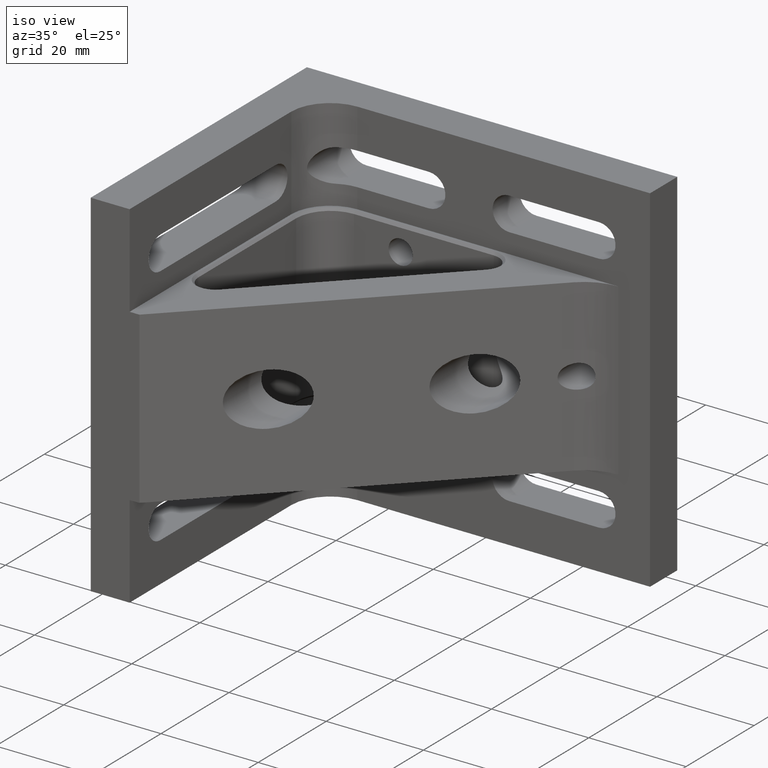
[diagram: clean part render]
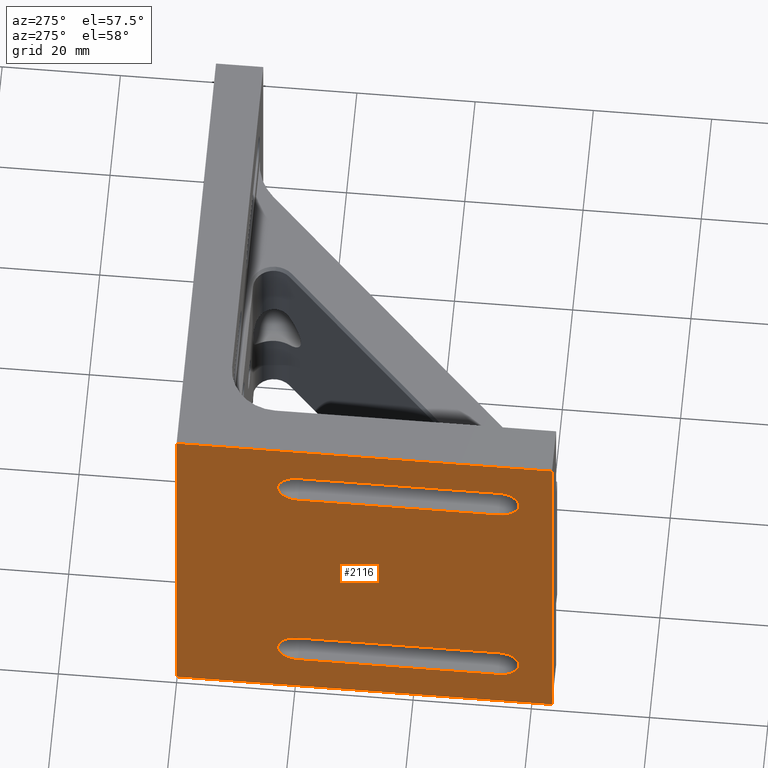
[diagram: tour spotlight — one face highlighted and labeled with its STEP entity id]
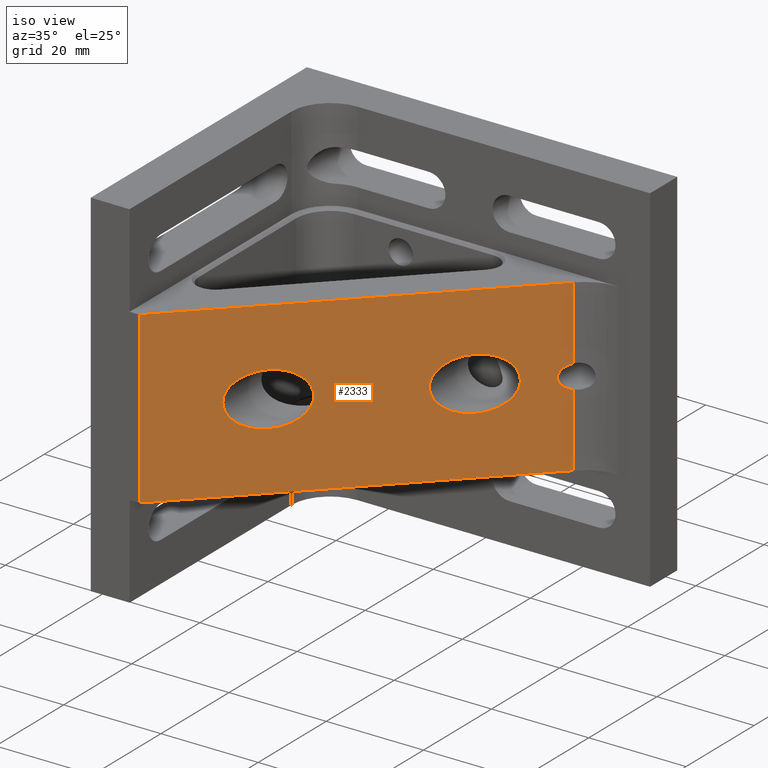
[diagram: tour spotlight — one face highlighted and labeled with its STEP entity id]
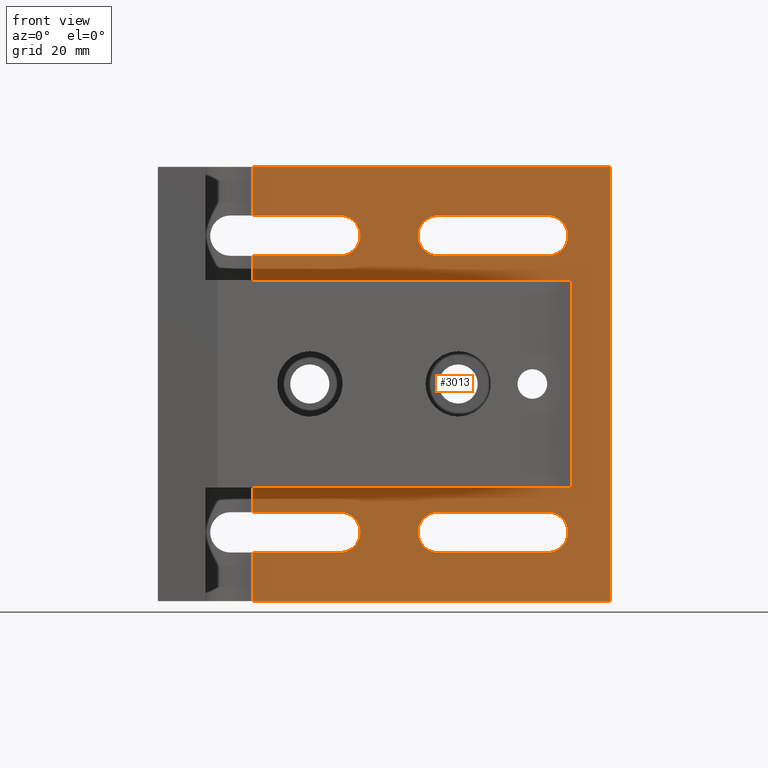
[diagram: tour spotlight — one face highlighted and labeled with its STEP entity id]
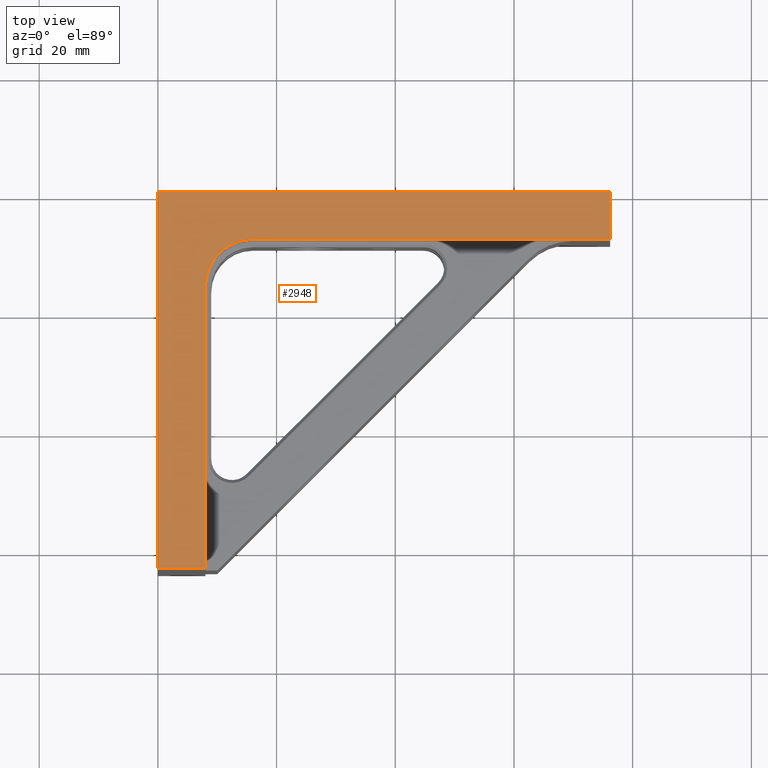
[diagram: tour spotlight — one face highlighted and labeled with its STEP entity id]
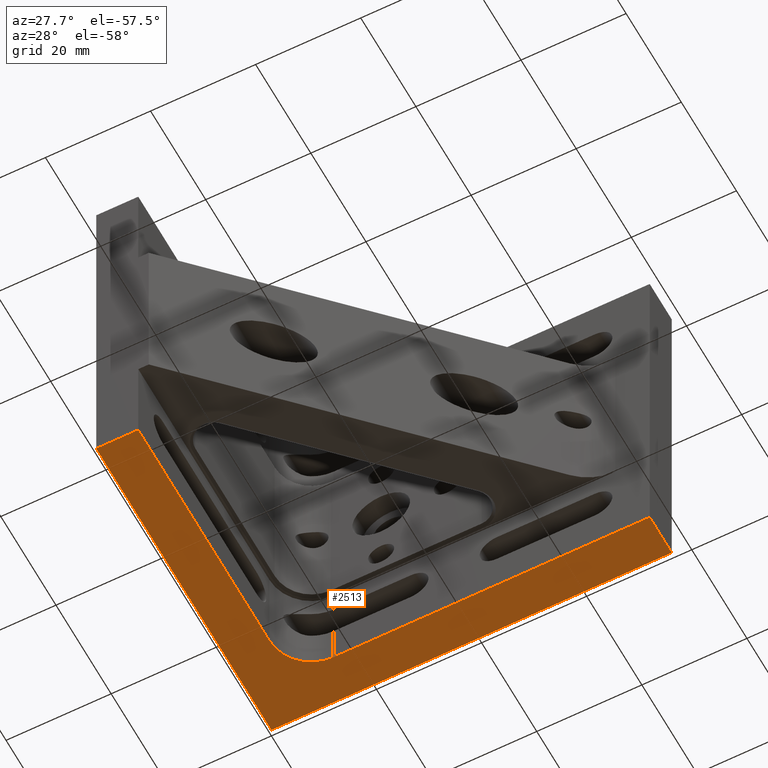
[diagram: tour spotlight — one face highlighted and labeled with its STEP entity id]
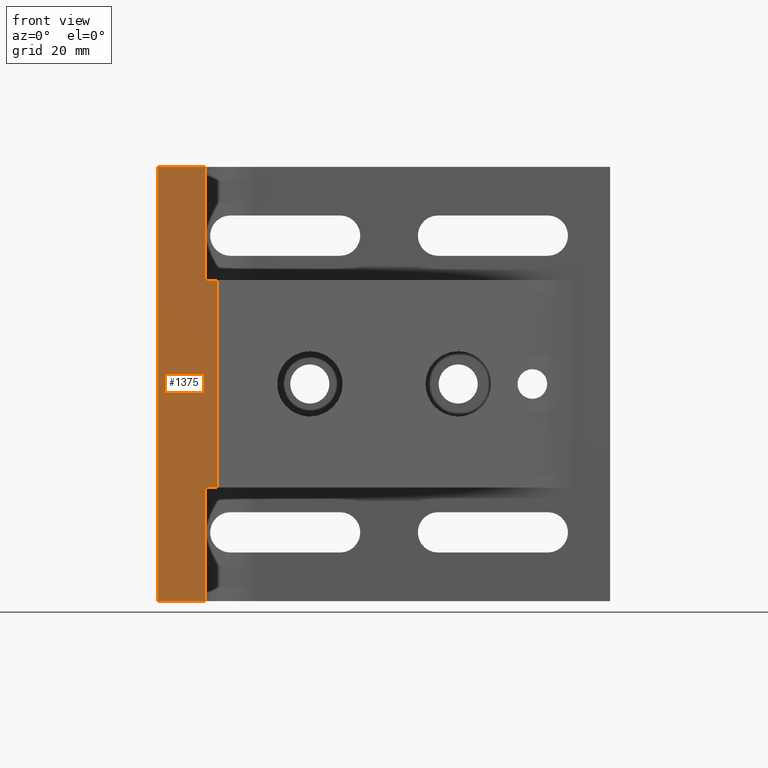
[diagram: tour spotlight — one face highlighted and labeled with its STEP entity id]
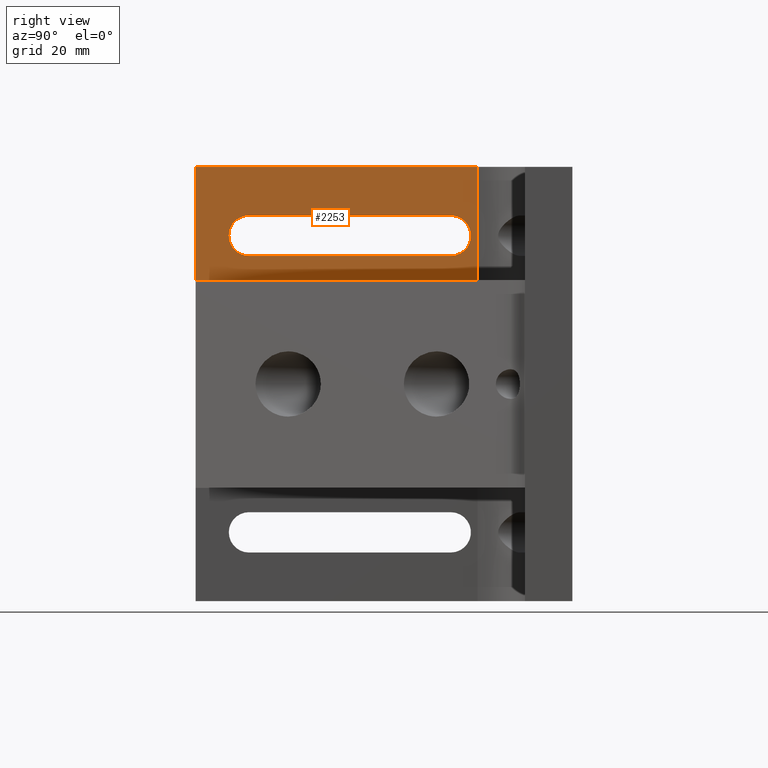
[diagram: tour spotlight — one face highlighted and labeled with its STEP entity id]
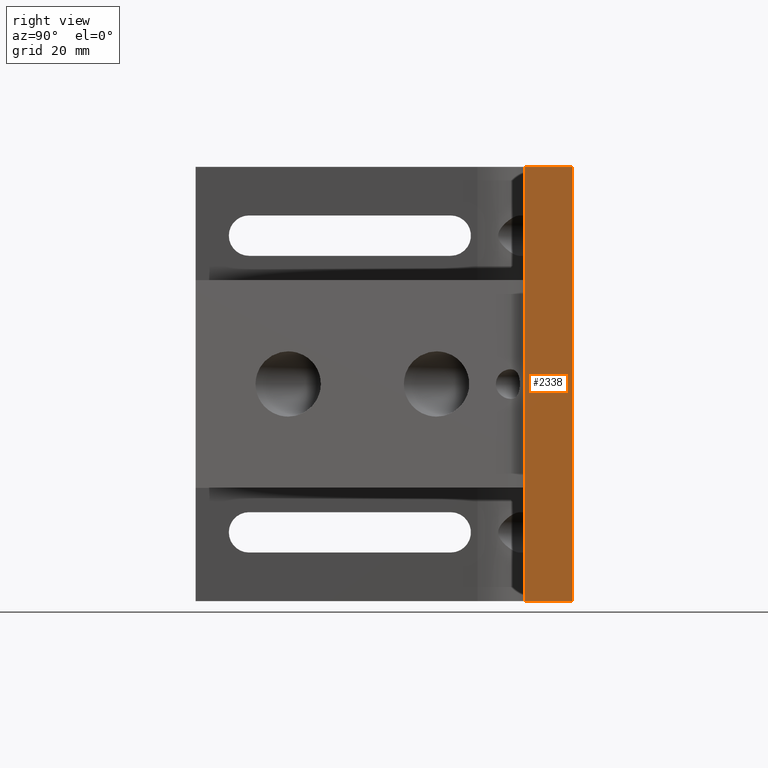
[diagram: tour spotlight — one face highlighted and labeled with its STEP entity id]
A machine part: a face-by-face anatomy tour. The part has 90 B-rep faces; the first image is the clean iso view, then the 8 largest visible faces are spotlighted one at a time (largest first), each with its STEP entity span.

Face 1 — auxiliary view, entity #2116. In plain terms, the highlighted planar face has unit normal (1, 0, -0).
Definition (entity closure, byte-faithful):
#27 = ORIENTED_EDGE ( 'NONE', *, *, #1056, .F. ) ;
#32 = ORIENTED_EDGE ( 'NONE', *, *, #911, .F. ) ;
#116 = DIRECTION ( 'NONE',  ( -1.000000000000000000, -1.224646799147352961E-16, 0.000000000000000000 ) ) ;
#152 = DIRECTION ( 'NONE',  ( -1.000000000000000000, -1.224646799147352961E-16, 0.000000000000000000 ) ) ;
#164 = ORIENTED_EDGE ( 'NONE', *, *, #1785, .F. ) ;
#177 = CARTESIAN_POINT ( 'NONE',  ( 2.510525938252075665E-15, -20.50000000000001776, 21.60000000000000497 ) ) ;
#292 = ORIENTED_EDGE ( 'NONE', *, *, #777, .F. ) ;
#296 = CIRCLE ( 'NONE', #511, 3.400000000000000355 ) ;
#325 = AXIS2_PLACEMENT_3D ( 'NONE', #1702, #1750, #1229 ) ;
#400 = EDGE_CURVE ( 'NONE', #1285, #1395, #1969, .T. ) ;
#402 = VERTEX_POINT ( 'NONE', #2978 ) ;
#418 = EDGE_LOOP ( 'NONE', ( #2228, #969, #292, #1904, #2628 ) ) ;
#423 = CIRCLE ( 'NONE', #2229, 3.400000000000000355 ) ;
#439 = CARTESIAN_POINT ( 'NONE',  ( 0.000000000000000000, 0.000000000000000000, 36.57600000000000051 ) ) ;
#466 = VERTEX_POINT ( 'NONE', #1338 ) ;
#511 = AXIS2_PLACEMENT_3D ( 'NONE', #2095, #116, #1545 ) ;
#544 = DIRECTION ( 'NONE',  ( 1.224646799147352961E-16, -1.000000000000000000, 0.000000000000000000 ) ) ;
#552 = LINE ( 'NONE', #3243, #2601 ) ;
#557 = VECTOR ( 'NONE', #544, 1000.000000000000000 ) ;
#610 = VERTEX_POINT ( 'NONE', #3092 ) ;
#632 = VERTEX_POINT ( 'NONE', #2684 ) ;
#651 = DIRECTION ( 'NONE',  ( -0.000000000000000000, -0.000000000000000000, -1.000000000000000000 ) ) ;
#663 = DIRECTION ( 'NONE',  ( -1.224646799147352961E-16, 1.000000000000000000, 0.000000000000000000 ) ) ;
#673 = EDGE_LOOP ( 'NONE', ( #1973, #1901, #1180, #3255 ) ) ;
#777 = EDGE_CURVE ( 'NONE', #2316, #466, #552, .T. ) ;
#809 = VECTOR ( 'NONE', #2613, 1000.000000000000000 ) ;
#842 = DIRECTION ( 'NONE',  ( -1.224646799147352221E-16, 1.000000000000000000, 0.000000000000000000 ) ) ;
#861 = VECTOR ( 'NONE', #1684, 1000.000000000000000 ) ;
#907 = VERTEX_POINT ( 'NONE', #2088 ) ;
#911 = EDGE_CURVE ( 'NONE', #907, #1933, #1087, .T. ) ;
#914 = EDGE_CURVE ( 'NONE', #632, #907, #1534, .T. ) ;
#969 = ORIENTED_EDGE ( 'NONE', *, *, #2364, .F. ) ;
#1044 = CARTESIAN_POINT ( 'NONE',  ( 6.674325055353077407E-15, -54.50000000000002842, -24.99999999999999289 ) ) ;
#1056 = EDGE_CURVE ( 'NONE', #610, #1362, #2412, .T. ) ;
#1078 = DIRECTION ( 'NONE',  ( -1.000000000000000000, -1.224646799147352961E-16, 0.000000000000000000 ) ) ;
#1087 = LINE ( 'NONE', #2840, #809 ) ;
#1098 = DIRECTION ( 'NONE',  ( -1.000000000000000000, -1.224646799147352961E-16, 0.000000000000000000 ) ) ;
#1180 = ORIENTED_EDGE ( 'NONE', *, *, #2480, .F. ) ;
#1181 = VECTOR ( 'NONE', #2184, 1000.000000000000000 ) ;
#1191 = CARTESIAN_POINT ( 'NONE',  ( 2.510525938252075665E-15, -20.50000000000001776, 28.40000000000000568 ) ) ;
#1208 = LINE ( 'NONE', #3149, #1181 ) ;
#1229 = DIRECTION ( 'NONE',  ( 1.224646799147352221E-16, -1.000000000000000000, 0.000000000000000000 ) ) ;
#1280 = VECTOR ( 'NONE', #1862, 1000.000000000000000 ) ;
#1285 = VERTEX_POINT ( 'NONE', #1315 ) ;
#1315 = CARTESIAN_POINT ( 'NONE',  ( 0.000000000000000000, 0.000000000000000000, 36.57600000000000051 ) ) ;
#1338 = CARTESIAN_POINT ( 'NONE',  ( 2.510525938252076454E-15, -20.50000000000002487, -21.59999999999999787 ) ) ;
#1362 = VERTEX_POINT ( 'NONE', #2051 ) ;
#1363 = FACE_BOUND ( 'NONE', #418, .T. ) ;
#1386 = EDGE_LOOP ( 'NONE', ( #27, #164, #32, #1960, #2258 ) ) ;
#1395 = VERTEX_POINT ( 'NONE', #1582 ) ;
#1396 = EDGE_CURVE ( 'NONE', #1362, #632, #1962, .T. ) ;
#1428 = CARTESIAN_POINT ( 'NONE',  ( 0.000000000000000000, 0.000000000000000000, -36.57600000000000051 ) ) ;
#1453 = CIRCLE ( 'NONE', #1867, 3.400000000000000355 ) ;
#1503 = VERTEX_POINT ( 'NONE', #1428 ) ;
#1507 = DIRECTION ( 'NONE',  ( -1.224646799147353207E-16, 1.000000000000000000, -2.040851148208008245E-16 ) ) ;
#1533 = DIRECTION ( 'NONE',  ( -1.224646799147352221E-16, 1.000000000000000000, 0.000000000000000000 ) ) ;
#1534 = CIRCLE ( 'NONE', #2796, 3.400000000000000355 ) ;
#1538 = AXIS2_PLACEMENT_3D ( 'NONE', #3188, #2099, #663 ) ;
#1545 = DIRECTION ( 'NONE',  ( 1.224646799147353207E-16, -1.000000000000000000, 0.000000000000000000 ) ) ;
#1557 = DIRECTION ( 'NONE',  ( -1.000000000000000000, -1.224646799147352961E-16, 0.000000000000000000 ) ) ;
#1582 = CARTESIAN_POINT ( 'NONE',  ( 7.776507174585691374E-15, -63.50000000000000000, 36.57600000000000051 ) ) ;
#1623 = CIRCLE ( 'NONE', #325, 3.400000000000000355 ) ;
#1684 = DIRECTION ( 'NONE',  ( 1.224646799147353207E-16, -1.000000000000000000, 0.000000000000000000 ) ) ;
#1702 = CARTESIAN_POINT ( 'NONE',  ( 6.674325055353077407E-15, -54.50000000000002842, -24.99999999999999289 ) ) ;
#1738 = VECTOR ( 'NONE', #1940, 1000.000000000000000 ) ;
#1742 = LINE ( 'NONE', #3045, #557 ) ;
#1745 = EDGE_CURVE ( 'NONE', #402, #2316, #423, .T. ) ;
#1750 = DIRECTION ( 'NONE',  ( -1.000000000000000000, -1.224646799147352961E-16, 0.000000000000000000 ) ) ;
#1785 = EDGE_CURVE ( 'NONE', #1933, #610, #1453, .T. ) ;
#1789 = DIRECTION ( 'NONE',  ( 1.224646799147352221E-16, -1.000000000000000000, 0.000000000000000000 ) ) ;
#1862 = DIRECTION ( 'NONE',  ( 1.224646799147353207E-16, -1.000000000000000000, 2.040851148208008245E-16 ) ) ;
#1867 = AXIS2_PLACEMENT_3D ( 'NONE', #2352, #152, #1921 ) ;
#1877 = PLANE ( 'NONE',  #1538 ) ;
#1901 = ORIENTED_EDGE ( 'NONE', *, *, #2269, .T. ) ;
#1904 = ORIENTED_EDGE ( 'NONE', *, *, #1745, .F. ) ;
#1921 = DIRECTION ( 'NONE',  ( -1.224646799147353207E-16, 1.000000000000000000, 0.000000000000000000 ) ) ;
#1923 = CARTESIAN_POINT ( 'NONE',  ( 2.510525938252076454E-15, -20.50000000000002487, -28.39999999999999858 ) ) ;
#1933 = VERTEX_POINT ( 'NONE', #1191 ) ;
#1940 = DIRECTION ( 'NONE',  ( 1.224646799147352961E-16, -1.000000000000000000, 0.000000000000000000 ) ) ;
#1954 = VECTOR ( 'NONE', #651, 1000.000000000000000 ) ;
#1960 = ORIENTED_EDGE ( 'NONE', *, *, #914, .F. ) ;
#1962 = CIRCLE ( 'NONE', #2498, 3.400000000000000355 ) ;
#1969 = LINE ( 'NONE', #2692, #1738 ) ;
#1970 = CARTESIAN_POINT ( 'NONE',  ( 6.674325055353077407E-15, -54.50000000000002842, -21.59999999999999076 ) ) ;
#1973 = ORIENTED_EDGE ( 'NONE', *, *, #2169, .T. ) ;
#1982 = VERTEX_POINT ( 'NONE', #2821 ) ;
#2051 = CARTESIAN_POINT ( 'NONE',  ( 6.674325055353076618E-15, -54.50000000000002132, 21.60000000000000497 ) ) ;
#2088 = CARTESIAN_POINT ( 'NONE',  ( 6.674325055353076618E-15, -54.50000000000002132, 28.40000000000000924 ) ) ;
#2095 = CARTESIAN_POINT ( 'NONE',  ( 2.510525938252076454E-15, -20.50000000000002487, -25.00000000000000000 ) ) ;
#2099 = DIRECTION ( 'NONE',  ( 1.000000000000000000, 1.224646799147352961E-16, -0.000000000000000000 ) ) ;
#2116 = ADVANCED_FACE ( 'NONE', ( #1363, #3171, #2900 ), #1877, .F. ) ;
#2140 = LINE ( 'NONE', #439, #1954 ) ;
#2153 = LINE ( 'NONE', #1923, #1280 ) ;
#2169 = EDGE_CURVE ( 'NONE', #1285, #1503, #2140, .T. ) ;
#2184 = DIRECTION ( 'NONE',  ( -0.000000000000000000, -0.000000000000000000, -1.000000000000000000 ) ) ;
#2216 = EDGE_CURVE ( 'NONE', #2276, #1982, #2153, .T. ) ;
#2228 = ORIENTED_EDGE ( 'NONE', *, *, #2216, .F. ) ;
#2229 = AXIS2_PLACEMENT_3D ( 'NONE', #1044, #1078, #1789 ) ;
#2258 = ORIENTED_EDGE ( 'NONE', *, *, #1396, .F. ) ;
#2263 = CARTESIAN_POINT ( 'NONE',  ( 2.510525938252076059E-15, -20.50000000000002132, -28.39999999999999147 ) ) ;
#2269 = EDGE_CURVE ( 'NONE', #1503, #2600, #1742, .T. ) ;
#2276 = VERTEX_POINT ( 'NONE', #2263 ) ;
#2293 = CARTESIAN_POINT ( 'NONE',  ( 6.674325055353076618E-15, -54.50000000000002132, 25.00000000000000711 ) ) ;
#2316 = VERTEX_POINT ( 'NONE', #1970 ) ;
#2352 = CARTESIAN_POINT ( 'NONE',  ( 2.510525938252075665E-15, -20.50000000000001776, 25.00000000000000711 ) ) ;
#2364 = EDGE_CURVE ( 'NONE', #466, #2276, #296, .T. ) ;
#2412 = LINE ( 'NONE', #177, #861 ) ;
#2470 = CARTESIAN_POINT ( 'NONE',  ( 7.776507174585691374E-15, -63.50000000000000000, -36.57600000000000051 ) ) ;
#2480 = EDGE_CURVE ( 'NONE', #1395, #2600, #1208, .T. ) ;
#2498 = AXIS2_PLACEMENT_3D ( 'NONE', #2592, #1098, #1533 ) ;
#2592 = CARTESIAN_POINT ( 'NONE',  ( 6.674325055353076618E-15, -54.50000000000002132, 25.00000000000000711 ) ) ;
#2600 = VERTEX_POINT ( 'NONE', #2470 ) ;
#2601 = VECTOR ( 'NONE', #1507, 1000.000000000000000 ) ;
#2613 = DIRECTION ( 'NONE',  ( -1.224646799147353207E-16, 1.000000000000000000, -0.000000000000000000 ) ) ;
#2628 = ORIENTED_EDGE ( 'NONE', *, *, #2958, .F. ) ;
#2684 = CARTESIAN_POINT ( 'NONE',  ( 7.090704967063177069E-15, -57.90000000000001990, 25.00000000000000711 ) ) ;
#2692 = CARTESIAN_POINT ( 'NONE',  ( 0.000000000000000000, 0.000000000000000000, 36.57600000000000051 ) ) ;
#2796 = AXIS2_PLACEMENT_3D ( 'NONE', #2293, #1557, #842 ) ;
#2821 = CARTESIAN_POINT ( 'NONE',  ( 6.674325055353077407E-15, -54.50000000000002842, -28.39999999999999503 ) ) ;
#2840 = CARTESIAN_POINT ( 'NONE',  ( 2.510525938252075665E-15, -20.50000000000001776, 28.40000000000000568 ) ) ;
#2900 = FACE_OUTER_BOUND ( 'NONE', #673, .T. ) ;
#2958 = EDGE_CURVE ( 'NONE', #1982, #402, #1623, .T. ) ;
#2978 = CARTESIAN_POINT ( 'NONE',  ( 7.090704967063177069E-15, -57.90000000000002700, -24.99999999999999289 ) ) ;
#3045 = CARTESIAN_POINT ( 'NONE',  ( 0.000000000000000000, 0.000000000000000000, -36.57600000000000051 ) ) ;
#3092 = CARTESIAN_POINT ( 'NONE',  ( 2.510525938252075270E-15, -20.50000000000001421, 21.60000000000000497 ) ) ;
#3149 = CARTESIAN_POINT ( 'NONE',  ( 7.776507174585691374E-15, -63.50000000000000000, 36.57600000000000051 ) ) ;
#3171 = FACE_BOUND ( 'NONE', #1386, .T. ) ;
#3188 = CARTESIAN_POINT ( 'NONE',  ( 0.000000000000000000, 0.000000000000000000, 36.57600000000000051 ) ) ;
#3243 = CARTESIAN_POINT ( 'NONE',  ( 2.510525938252076454E-15, -20.50000000000002487, -21.59999999999999787 ) ) ;
#3255 = ORIENTED_EDGE ( 'NONE', *, *, #400, .F. ) ;

Face 2 — iso view, entity #2333. In plain terms, the highlighted planar face has unit normal (0.7071, -0.7071, 0).
Definition (entity closure, byte-faithful):
#132 = FACE_OUTER_BOUND ( 'NONE', #2819, .T. ) ;
#241 =( BOUNDED_CURVE ( )  B_SPLINE_CURVE ( 3, ( #748, #1715, #1477, #1763 ),
 .UNSPECIFIED., .F., .F. ) 
 B_SPLINE_CURVE_WITH_KNOTS ( ( 4, 4 ),
 ( 1.783980313395676864, 4.499204993783910034 ),
 .UNSPECIFIED. ) 
 CURVE ( )  GEOMETRIC_REPRESENTATION_ITEM ( )  RATIONAL_B_SPLINE_CURVE ( ( 1.000000000000000000, 0.4743819168358197058, 0.4743819168358197058, 1.000000000000000000 ) ) 
 REPRESENTATION_ITEM ( '' )  );
#266 = EDGE_CURVE ( 'NONE', #2018, #2313, #699, .T. ) ;
#274 = VECTOR ( 'NONE', #2749, 999.9999999999998863 ) ;
#281 = EDGE_CURVE ( 'NONE', #432, #2558, #1693, .T. ) ;
#318 = PLANE ( 'NONE',  #3179 ) ;
#370 = ORIENTED_EDGE ( 'NONE', *, *, #266, .F. ) ;
#372 = DIRECTION ( 'NONE',  ( -0.000000000000000000, -0.000000000000000000, 1.000000000000000000 ) ) ;
#432 = VERTEX_POINT ( 'NONE', #3235 ) ;
#484 = CARTESIAN_POINT ( 'NONE',  ( 61.59999999999998721, -11.90000000000020286, 5.499999999999995559 ) ) ;
#509 = EDGE_CURVE ( 'NONE', #1047, #734, #1787, .T. ) ;
#686 = CARTESIAN_POINT ( 'NONE',  ( 39.60000000000002274, -33.90000000000008384, 5.499999999999999112 ) ) ;
#699 =( BOUNDED_CURVE ( )  B_SPLINE_CURVE ( 3, ( #2455, #1497, #484, #2516 ),
 .UNSPECIFIED., .F., .T. ) 
 B_SPLINE_CURVE_WITH_KNOTS ( ( 4, 4 ),
 ( 1.570796326794896558, 4.712388980384689674 ),
 .UNSPECIFIED. ) 
 CURVE ( )  GEOMETRIC_REPRESENTATION_ITEM ( )  RATIONAL_B_SPLINE_CURVE ( ( 1.000000000000000000, 0.3333333333333333703, 0.3333333333333333703, 1.000000000000000000 ) ) 
 REPRESENTATION_ITEM ( '' )  );
#710 = ORIENTED_EDGE ( 'NONE', *, *, #2898, .F. ) ;
#734 = VERTEX_POINT ( 'NONE', #1278 ) ;
#748 = CARTESIAN_POINT ( 'NONE',  ( 62.57106781186568156, -10.92893218813451384, 2.443405561988310826 ) ) ;
#756 = CARTESIAN_POINT ( 'NONE',  ( 14.60000000000001918, -58.90000000000000568, -5.499999999999984013 ) ) ;
#766 = EDGE_CURVE ( 'NONE', #2620, #2584, #241, .T. ) ;
#772 = ORIENTED_EDGE ( 'NONE', *, *, #281, .T. ) ;
#811 = VECTOR ( 'NONE', #372, 1000.000000000000000 ) ;
#815 = CARTESIAN_POINT ( 'NONE',  ( 25.59999999999999787, -47.90000000000006253, -5.499999999999984901 ) ) ;
#833 = DIRECTION ( 'NONE',  ( 0.7071067811865489050, 0.7071067811865462405, 0.000000000000000000 ) ) ;
#834 = CARTESIAN_POINT ( 'NONE',  ( 25.59999999999999787, -47.90000000000006253, 5.499999999999997335 ) ) ;
#1002 =( BOUNDED_CURVE ( )  B_SPLINE_CURVE ( 3, ( #3162, #686, #1674, #2685 ),
 .UNSPECIFIED., .F., .F. ) 
 B_SPLINE_CURVE_WITH_KNOTS ( ( 4, 4 ),
 ( 4.712388980384689674, 7.853981633974482790 ),
 .UNSPECIFIED. ) 
 CURVE ( )  GEOMETRIC_REPRESENTATION_ITEM ( )  RATIONAL_B_SPLINE_CURVE ( ( 1.000000000000000000, 0.3333333333333333703, 0.3333333333333333703, 1.000000000000000000 ) ) 
 REPRESENTATION_ITEM ( '' )  );
#1047 = VERTEX_POINT ( 'NONE', #3176 ) ;
#1049 = LINE ( 'NONE', #2289, #2962 ) ;
#1142 = ORIENTED_EDGE ( 'NONE', *, *, #766, .F. ) ;
#1224 = CARTESIAN_POINT ( 'NONE',  ( 25.59999999999999787, -47.90000000000006253, -5.499999999999984901 ) ) ;
#1278 = CARTESIAN_POINT ( 'NONE',  ( 62.57106781186568156, -10.92893218813451028, 17.50000000000000000 ) ) ;
#1343 = CARTESIAN_POINT ( 'NONE',  ( 50.60000000000000853, -22.90000000000014069, -5.499999999999984901 ) ) ;
#1443 = EDGE_CURVE ( 'NONE', #2620, #734, #1681, .T. ) ;
#1473 = CARTESIAN_POINT ( 'NONE',  ( 14.60000000000001918, -58.90000000000000568, 5.499999999999999112 ) ) ;
#1477 = CARTESIAN_POINT ( 'NONE',  ( 59.21499230759546606, -14.28500769240471868, -1.716904653734203423 ) ) ;
#1497 = CARTESIAN_POINT ( 'NONE',  ( 61.59999999999998721, -11.90000000000020286, -5.499999999999985789 ) ) ;
#1577 = CARTESIAN_POINT ( 'NONE',  ( 10.00000000000000000, -63.50000000000000000, 17.50000000000000000 ) ) ;
#1581 = DIRECTION ( 'NONE',  ( 0.000000000000000000, 0.000000000000000000, 1.000000000000000000 ) ) ;
#1601 = EDGE_CURVE ( 'NONE', #2130, #2411, #1671, .T. ) ;
#1671 =( BOUNDED_CURVE ( )  B_SPLINE_CURVE ( 3, ( #3010, #1473, #756, #1224 ),
 .UNSPECIFIED., .F., .F. ) 
 B_SPLINE_CURVE_WITH_KNOTS ( ( 4, 4 ),
 ( 4.712388980384689674, 7.853981633974482790 ),
 .UNSPECIFIED. ) 
 CURVE ( )  GEOMETRIC_REPRESENTATION_ITEM ( )  RATIONAL_B_SPLINE_CURVE ( ( 1.000000000000000000, 0.3333333333333333703, 0.3333333333333333703, 1.000000000000000000 ) ) 
 REPRESENTATION_ITEM ( '' )  );
#1674 = CARTESIAN_POINT ( 'NONE',  ( 39.60000000000002274, -33.90000000000008384, -5.499999999999984013 ) ) ;
#1681 = LINE ( 'NONE', #2693, #1757 ) ;
#1693 = LINE ( 'NONE', #1739, #274 ) ;
#1706 = CARTESIAN_POINT ( 'NONE',  ( 62.57106781186568156, -10.92893218813451028, -2.443405561988310826 ) ) ;
#1715 = CARTESIAN_POINT ( 'NONE',  ( 59.21499230759546606, -14.28500769240471868, 1.716904653734202091 ) ) ;
#1739 = CARTESIAN_POINT ( 'NONE',  ( 10.00000000000000000, -63.50000000000000000, -17.50000000000000000 ) ) ;
#1752 = EDGE_CURVE ( 'NONE', #2411, #2130, #2148, .T. ) ;
#1757 = VECTOR ( 'NONE', #2902, 1000.000000000000000 ) ;
#1763 = CARTESIAN_POINT ( 'NONE',  ( 62.57106781186568156, -10.92893218813451028, -2.443405561988310826 ) ) ;
#1787 = LINE ( 'NONE', #1577, #2278 ) ;
#1935 = EDGE_LOOP ( 'NONE', ( #370, #710 ) ) ;
#1988 = EDGE_LOOP ( 'NONE', ( #2511, #2280 ) ) ;
#1999 = CARTESIAN_POINT ( 'NONE',  ( 50.60000000000000853, -22.90000000000014069, 5.499999999999997335 ) ) ;
#2014 = DIRECTION ( 'NONE',  ( 0.7071067811865489050, 0.7071067811865462405, 0.000000000000000000 ) ) ;
#2018 = VERTEX_POINT ( 'NONE', #1343 ) ;
#2062 = EDGE_CURVE ( 'NONE', #432, #1047, #1049, .T. ) ;
#2064 = CARTESIAN_POINT ( 'NONE',  ( 62.57106781186568156, -10.92893218813451028, 0.000000000000000000 ) ) ;
#2070 = ORIENTED_EDGE ( 'NONE', *, *, #509, .F. ) ;
#2079 = DIRECTION ( 'NONE',  ( 0.7071067811865462405, -0.7071067811865489050, 0.000000000000000000 ) ) ;
#2130 = VERTEX_POINT ( 'NONE', #2608 ) ;
#2148 =( BOUNDED_CURVE ( )  B_SPLINE_CURVE ( 3, ( #2588, #2780, #3078, #834 ),
 .UNSPECIFIED., .F., .F. ) 
 B_SPLINE_CURVE_WITH_KNOTS ( ( 4, 4 ),
 ( 1.570796326794896558, 4.712388980384689674 ),
 .UNSPECIFIED. ) 
 CURVE ( )  GEOMETRIC_REPRESENTATION_ITEM ( )  RATIONAL_B_SPLINE_CURVE ( ( 1.000000000000000000, 0.3333333333333333703, 0.3333333333333333703, 1.000000000000000000 ) ) 
 REPRESENTATION_ITEM ( '' )  );
#2278 = VECTOR ( 'NONE', #2014, 999.9999999999998863 ) ;
#2280 = ORIENTED_EDGE ( 'NONE', *, *, #1601, .F. ) ;
#2289 = CARTESIAN_POINT ( 'NONE',  ( 10.00000000000000000, -63.50000000000000000, 0.000000000000000000 ) ) ;
#2313 = VERTEX_POINT ( 'NONE', #1999 ) ;
#2319 = CARTESIAN_POINT ( 'NONE',  ( 10.00000000000000000, -63.50000000000000000, 0.000000000000000000 ) ) ;
#2333 = ADVANCED_FACE ( 'NONE', ( #132, #2351, #3131 ), #318, .T. ) ;
#2351 = FACE_BOUND ( 'NONE', #1935, .T. ) ;
#2411 = VERTEX_POINT ( 'NONE', #815 ) ;
#2418 = EDGE_CURVE ( 'NONE', #2558, #2584, #2604, .T. ) ;
#2436 = CARTESIAN_POINT ( 'NONE',  ( 62.57106781186568156, -10.92893218813451028, -17.50000000000000000 ) ) ;
#2455 = CARTESIAN_POINT ( 'NONE',  ( 50.60000000000000853, -22.90000000000014069, -5.499999999999984901 ) ) ;
#2511 = ORIENTED_EDGE ( 'NONE', *, *, #1752, .F. ) ;
#2516 = CARTESIAN_POINT ( 'NONE',  ( 50.60000000000000853, -22.90000000000014069, 5.499999999999997335 ) ) ;
#2558 = VERTEX_POINT ( 'NONE', #2436 ) ;
#2584 = VERTEX_POINT ( 'NONE', #1706 ) ;
#2588 = CARTESIAN_POINT ( 'NONE',  ( 25.59999999999999787, -47.90000000000006253, -5.499999999999984901 ) ) ;
#2604 = LINE ( 'NONE', #2064, #811 ) ;
#2608 = CARTESIAN_POINT ( 'NONE',  ( 25.59999999999999787, -47.90000000000006253, 5.499999999999997335 ) ) ;
#2620 = VERTEX_POINT ( 'NONE', #2989 ) ;
#2685 = CARTESIAN_POINT ( 'NONE',  ( 50.60000000000000853, -22.90000000000014069, -5.499999999999984901 ) ) ;
#2693 = CARTESIAN_POINT ( 'NONE',  ( 62.57106781186568156, -10.92893218813451028, 0.000000000000000000 ) ) ;
#2746 = ORIENTED_EDGE ( 'NONE', *, *, #1443, .T. ) ;
#2749 = DIRECTION ( 'NONE',  ( 0.7071067811865489050, 0.7071067811865462405, 0.000000000000000000 ) ) ;
#2780 = CARTESIAN_POINT ( 'NONE',  ( 36.59999999999997300, -36.90000000000011937, -5.499999999999985789 ) ) ;
#2819 = EDGE_LOOP ( 'NONE', ( #1142, #2746, #2070, #2868, #772, #3175 ) ) ;
#2868 = ORIENTED_EDGE ( 'NONE', *, *, #2062, .F. ) ;
#2898 = EDGE_CURVE ( 'NONE', #2313, #2018, #1002, .T. ) ;
#2902 = DIRECTION ( 'NONE',  ( -0.000000000000000000, -0.000000000000000000, 1.000000000000000000 ) ) ;
#2962 = VECTOR ( 'NONE', #1581, 1000.000000000000000 ) ;
#2989 = CARTESIAN_POINT ( 'NONE',  ( 62.57106781186568156, -10.92893218813451384, 2.443405561988310826 ) ) ;
#3010 = CARTESIAN_POINT ( 'NONE',  ( 25.59999999999999787, -47.90000000000006253, 5.499999999999997335 ) ) ;
#3078 = CARTESIAN_POINT ( 'NONE',  ( 36.59999999999997300, -36.90000000000011937, 5.499999999999995559 ) ) ;
#3131 = FACE_BOUND ( 'NONE', #1988, .T. ) ;
#3162 = CARTESIAN_POINT ( 'NONE',  ( 50.60000000000000853, -22.90000000000014069, 5.499999999999997335 ) ) ;
#3175 = ORIENTED_EDGE ( 'NONE', *, *, #2418, .T. ) ;
#3176 = CARTESIAN_POINT ( 'NONE',  ( 10.00000000000000178, -63.50000000000000000, 17.50000000000000000 ) ) ;
#3179 = AXIS2_PLACEMENT_3D ( 'NONE', #2319, #2079, #833 ) ;
#3235 = CARTESIAN_POINT ( 'NONE',  ( 10.00000000000000178, -63.50000000000000000, -17.50000000000000000 ) ) ;

Face 3 — front view, entity #3013. In plain terms, the highlighted planar face has unit normal (-0, 1, 0).
Definition (entity closure, byte-faithful):
#6 = CARTESIAN_POINT ( 'NONE',  ( 76.20000000000000284, -8.000000000000000000, 36.57600000000000051 ) ) ;
#11 = LINE ( 'NONE', #1440, #2831 ) ;
#34 = CARTESIAN_POINT ( 'NONE',  ( 30.70000000000000639, -8.000000000000007105, -25.00000000000000000 ) ) ;
#44 = VERTEX_POINT ( 'NONE', #1776 ) ;
#68 = CARTESIAN_POINT ( 'NONE',  ( 76.20000000000000284, -8.000000000000000000, 36.57600000000000051 ) ) ;
#122 = LINE ( 'NONE', #1067, #519 ) ;
#129 = VERTEX_POINT ( 'NONE', #884 ) ;
#150 = CIRCLE ( 'NONE', #2226, 3.400000000000000355 ) ;
#151 = LINE ( 'NONE', #2403, #3034 ) ;
#221 = CARTESIAN_POINT ( 'NONE',  ( 30.70000000000000639, -8.000000000000007105, 21.60000000000000142 ) ) ;
#231 = VERTEX_POINT ( 'NONE', #267 ) ;
#252 = CARTESIAN_POINT ( 'NONE',  ( 15.99999999999999289, -8.000000000000007105, -36.57600000000000051 ) ) ;
#256 = EDGE_CURVE ( 'NONE', #510, #923, #1209, .T. ) ;
#267 = CARTESIAN_POINT ( 'NONE',  ( 47.20000000000000284, -8.000000000000007105, 21.60000000000000142 ) ) ;
#272 = DIRECTION ( 'NONE',  ( 1.000000000000000000, 1.271791404675078248E-16, -0.000000000000000000 ) ) ;
#307 = VECTOR ( 'NONE', #3008, 1000.000000000000000 ) ;
#335 = VERTEX_POINT ( 'NONE', #221 ) ;
#352 = CARTESIAN_POINT ( 'NONE',  ( 15.99999999999999289, -8.000000000000007105, -17.50000000000000000 ) ) ;
#360 = EDGE_CURVE ( 'NONE', #2155, #2520, #11, .T. ) ;
#383 = AXIS2_PLACEMENT_3D ( 'NONE', #2450, #2717, #732 ) ;
#401 = DIRECTION ( 'NONE',  ( 1.000000000000000000, 1.271791404675078248E-16, 0.000000000000000000 ) ) ;
#456 = ORIENTED_EDGE ( 'NONE', *, *, #1399, .F. ) ;
#494 = FACE_BOUND ( 'NONE', #2781, .T. ) ;
#510 = VERTEX_POINT ( 'NONE', #352 ) ;
#518 = CARTESIAN_POINT ( 'NONE',  ( 76.20000000000000284, -8.000000000000000000, -36.57600000000000051 ) ) ;
#519 = VECTOR ( 'NONE', #2800, 1000.000000000000000 ) ;
#521 = DIRECTION ( 'NONE',  ( 0.000000000000000000, 0.000000000000000000, -1.000000000000000000 ) ) ;
#522 = CARTESIAN_POINT ( 'NONE',  ( 76.20000000000000284, -8.000000000000000000, -17.50000000000000000 ) ) ;
#566 = EDGE_CURVE ( 'NONE', #1402, #129, #2318, .T. ) ;
#568 = EDGE_LOOP ( 'NONE', ( #1646, #2955, #726, #1593, #2925, #2046, #762, #1100, #594, #2027, #1206, #2384, #1081, #2098, #3001, #704 ) ) ;
#569 = AXIS2_PLACEMENT_3D ( 'NONE', #2342, #2610, #2783 ) ;
#591 = LINE ( 'NONE', #1090, #2508 ) ;
#594 = ORIENTED_EDGE ( 'NONE', *, *, #2011, .F. ) ;
#635 = CARTESIAN_POINT ( 'NONE',  ( 15.99999999999999289, -8.000000000000007105, 17.50000000000000000 ) ) ;
#643 = ORIENTED_EDGE ( 'NONE', *, *, #1344, .F. ) ;
#652 = DIRECTION ( 'NONE',  ( 1.271791404675078248E-16, -1.000000000000000000, -0.000000000000000000 ) ) ;
#704 = ORIENTED_EDGE ( 'NONE', *, *, #3146, .F. ) ;
#721 = VECTOR ( 'NONE', #521, 1000.000000000000000 ) ;
#726 = ORIENTED_EDGE ( 'NONE', *, *, #2538, .T. ) ;
#727 = EDGE_CURVE ( 'NONE', #2182, #1683, #1128, .T. ) ;
#730 = EDGE_CURVE ( 'NONE', #3043, #1046, #731, .T. ) ;
#731 = LINE ( 'NONE', #2206, #1289 ) ;
#732 = DIRECTION ( 'NONE',  ( -1.000000000000000000, 0.000000000000000000, 0.000000000000000000 ) ) ;
#749 = CARTESIAN_POINT ( 'NONE',  ( 69.64213562373114996, -8.000000000000000000, 17.50000000000000000 ) ) ;
#762 = ORIENTED_EDGE ( 'NONE', *, *, #256, .T. ) ;
#782 = VECTOR ( 'NONE', #401, 1000.000000000000000 ) ;
#805 = LINE ( 'NONE', #1586, #1015 ) ;
#884 = CARTESIAN_POINT ( 'NONE',  ( 76.20000000000000284, -8.000000000000000000, -36.57600000000000051 ) ) ;
#891 = VECTOR ( 'NONE', #1017, 1000.000000000000000 ) ;
#905 = LINE ( 'NONE', #1628, #782 ) ;
#921 = EDGE_CURVE ( 'NONE', #1136, #923, #805, .T. ) ;
#923 = VERTEX_POINT ( 'NONE', #2104 ) ;
#949 = CARTESIAN_POINT ( 'NONE',  ( 69.64213562373114996, -8.000000000000000000, -17.50000000000000000 ) ) ;
#976 = CIRCLE ( 'NONE', #1401, 3.400000000000000355 ) ;
#981 = VERTEX_POINT ( 'NONE', #2596 ) ;
#1013 = CARTESIAN_POINT ( 'NONE',  ( 47.20000000000000284, -8.000000000000007105, 28.40000000000000213 ) ) ;
#1015 = VECTOR ( 'NONE', #2854, 1000.000000000000000 ) ;
#1017 = DIRECTION ( 'NONE',  ( 1.000000000000000000, 1.271791404675078248E-16, -0.000000000000000000 ) ) ;
#1021 = VECTOR ( 'NONE', #1190, 1000.000000000000000 ) ;
#1028 = VECTOR ( 'NONE', #2069, 1000.000000000000000 ) ;
#1046 = VERTEX_POINT ( 'NONE', #949 ) ;
#1058 = VERTEX_POINT ( 'NONE', #1912 ) ;
#1067 = CARTESIAN_POINT ( 'NONE',  ( 15.99999999999999289, -8.000000000000007105, -36.57600000000000051 ) ) ;
#1081 = ORIENTED_EDGE ( 'NONE', *, *, #566, .F. ) ;
#1084 = CARTESIAN_POINT ( 'NONE',  ( 47.20000000000000284, -8.000000000000007105, 25.00000000000000000 ) ) ;
#1090 = CARTESIAN_POINT ( 'NONE',  ( 47.19999999999999574, -8.000000000000007105, -21.60000000000000142 ) ) ;
#1100 = ORIENTED_EDGE ( 'NONE', *, *, #921, .F. ) ;
#1111 = CARTESIAN_POINT ( 'NONE',  ( 76.20000000000000284, -8.000000000000000000, 17.50000000000000000 ) ) ;
#1124 = VERTEX_POINT ( 'NONE', #2462 ) ;
#1128 = LINE ( 'NONE', #2113, #721 ) ;
#1136 = VERTEX_POINT ( 'NONE', #1487 ) ;
#1145 = LINE ( 'NONE', #2135, #1021 ) ;
#1149 = CARTESIAN_POINT ( 'NONE',  ( 15.99999999999999289, -8.000000000000007105, -28.40000000000000924 ) ) ;
#1157 = EDGE_CURVE ( 'NONE', #981, #1058, #3005, .T. ) ;
#1164 = VERTEX_POINT ( 'NONE', #1013 ) ;
#1190 = DIRECTION ( 'NONE',  ( 1.000000000000000000, 1.271791404675078248E-16, 0.000000000000000000 ) ) ;
#1206 = ORIENTED_EDGE ( 'NONE', *, *, #1359, .T. ) ;
#1209 = LINE ( 'NONE', #252, #1719 ) ;
#1258 = LINE ( 'NONE', #3081, #1028 ) ;
#1264 = EDGE_CURVE ( 'NONE', #3076, #129, #1746, .T. ) ;
#1269 = EDGE_CURVE ( 'NONE', #1946, #1164, #1258, .T. ) ;
#1289 = VECTOR ( 'NONE', #2023, 1000.000000000000000 ) ;
#1344 = EDGE_CURVE ( 'NONE', #1164, #231, #150, .T. ) ;
#1359 = EDGE_CURVE ( 'NONE', #2155, #3076, #122, .T. ) ;
#1367 = LINE ( 'NONE', #1398, #3035 ) ;
#1382 = DIRECTION ( 'NONE',  ( 1.000000000000000000, 1.271791404675078248E-16, -0.000000000000000000 ) ) ;
#1398 = CARTESIAN_POINT ( 'NONE',  ( 12.19999999999999574, -8.000000000000007105, 28.40000000000000213 ) ) ;
#1399 = EDGE_CURVE ( 'NONE', #1474, #1124, #3190, .T. ) ;
#1401 = AXIS2_PLACEMENT_3D ( 'NONE', #1896, #652, #2122 ) ;
#1402 = VERTEX_POINT ( 'NONE', #2539 ) ;
#1407 = DIRECTION ( 'NONE',  ( 0.000000000000000000, 0.000000000000000000, -1.000000000000000000 ) ) ;
#1423 = EDGE_CURVE ( 'NONE', #44, #1946, #976, .T. ) ;
#1427 = CARTESIAN_POINT ( 'NONE',  ( 15.99999999999999289, -8.000000000000007105, 36.57600000000000051 ) ) ;
#1440 = CARTESIAN_POINT ( 'NONE',  ( 12.19999999999999574, -8.000000000000007105, -28.40000000000000213 ) ) ;
#1474 = VERTEX_POINT ( 'NONE', #2916 ) ;
#1478 = FACE_BOUND ( 'NONE', #3030, .T. ) ;
#1479 = VERTEX_POINT ( 'NONE', #635 ) ;
#1487 = CARTESIAN_POINT ( 'NONE',  ( 30.70000000000000639, -8.000000000000007105, -21.60000000000000142 ) ) ;
#1553 = DIRECTION ( 'NONE',  ( -1.000000000000000000, 0.000000000000000000, 0.000000000000000000 ) ) ;
#1566 = ORIENTED_EDGE ( 'NONE', *, *, #1423, .F. ) ;
#1585 = VERTEX_POINT ( 'NONE', #2767 ) ;
#1586 = CARTESIAN_POINT ( 'NONE',  ( 12.19999999999999574, -8.000000000000007105, -21.60000000000000142 ) ) ;
#1589 = AXIS2_PLACEMENT_3D ( 'NONE', #2003, #2969, #2251 ) ;
#1593 = ORIENTED_EDGE ( 'NONE', *, *, #2374, .T. ) ;
#1603 = DIRECTION ( 'NONE',  ( 1.271791404675078248E-16, -1.000000000000000000, -0.000000000000000000 ) ) ;
#1628 = CARTESIAN_POINT ( 'NONE',  ( 12.19999999999999574, -8.000000000000007105, 21.60000000000000142 ) ) ;
#1646 = ORIENTED_EDGE ( 'NONE', *, *, #3003, .F. ) ;
#1648 = CARTESIAN_POINT ( 'NONE',  ( 30.70000000000000639, -8.000000000000007105, -28.40000000000000213 ) ) ;
#1683 = VERTEX_POINT ( 'NONE', #2816 ) ;
#1719 = VECTOR ( 'NONE', #1939, 1000.000000000000000 ) ;
#1746 = LINE ( 'NONE', #518, #2811 ) ;
#1776 = CARTESIAN_POINT ( 'NONE',  ( 65.70000000000000284, -8.000000000000000000, 21.60000000000000142 ) ) ;
#1800 = AXIS2_PLACEMENT_3D ( 'NONE', #34, #2270, #1553 ) ;
#1879 = CIRCLE ( 'NONE', #383, 3.400000000000000355 ) ;
#1887 = ORIENTED_EDGE ( 'NONE', *, *, #1157, .F. ) ;
#1896 = CARTESIAN_POINT ( 'NONE',  ( 65.70000000000000284, -8.000000000000000000, 25.00000000000000000 ) ) ;
#1902 = CARTESIAN_POINT ( 'NONE',  ( 15.99999999999999289, -8.000000000000007105, 21.60000000000000142 ) ) ;
#1912 = CARTESIAN_POINT ( 'NONE',  ( 65.70000000000000284, -8.000000000000001776, -21.60000000000000142 ) ) ;
#1939 = DIRECTION ( 'NONE',  ( 0.000000000000000000, 0.000000000000000000, -1.000000000000000000 ) ) ;
#1946 = VERTEX_POINT ( 'NONE', #2437 ) ;
#2003 = CARTESIAN_POINT ( 'NONE',  ( 65.70000000000000284, -8.000000000000000000, -25.00000000000000000 ) ) ;
#2007 = ORIENTED_EDGE ( 'NONE', *, *, #1269, .F. ) ;
#2011 = EDGE_CURVE ( 'NONE', #2520, #1136, #2492, .T. ) ;
#2023 = DIRECTION ( 'NONE',  ( 0.000000000000000000, 0.000000000000000000, -1.000000000000000000 ) ) ;
#2027 = ORIENTED_EDGE ( 'NONE', *, *, #360, .F. ) ;
#2046 = ORIENTED_EDGE ( 'NONE', *, *, #3048, .F. ) ;
#2069 = DIRECTION ( 'NONE',  ( -1.000000000000000000, -1.271791404675078248E-16, 0.000000000000000000 ) ) ;
#2098 = ORIENTED_EDGE ( 'NONE', *, *, #3125, .F. ) ;
#2104 = CARTESIAN_POINT ( 'NONE',  ( 15.99999999999999289, -8.000000000000007105, -21.60000000000000142 ) ) ;
#2113 = CARTESIAN_POINT ( 'NONE',  ( 15.99999999999999289, -8.000000000000007105, 17.50000000000000000 ) ) ;
#2119 = LINE ( 'NONE', #2677, #2799 ) ;
#2122 = DIRECTION ( 'NONE',  ( -1.000000000000000000, 0.000000000000000000, 0.000000000000000000 ) ) ;
#2128 = LINE ( 'NONE', #2145, #3148 ) ;
#2129 = EDGE_CURVE ( 'NONE', #1124, #981, #2119, .T. ) ;
#2135 = CARTESIAN_POINT ( 'NONE',  ( 47.19999999999999574, -8.000000000000007105, 21.60000000000000142 ) ) ;
#2145 = CARTESIAN_POINT ( 'NONE',  ( 76.20000000000000284, -8.000000000000000000, 36.57600000000000051 ) ) ;
#2155 = VERTEX_POINT ( 'NONE', #1149 ) ;
#2182 = VERTEX_POINT ( 'NONE', #1427 ) ;
#2206 = CARTESIAN_POINT ( 'NONE',  ( 69.64213562373114996, -8.000000000000000000, 36.57600000000000051 ) ) ;
#2222 = DIRECTION ( 'NONE',  ( -1.000000000000000000, -1.271791404675078248E-16, 0.000000000000000000 ) ) ;
#2226 = AXIS2_PLACEMENT_3D ( 'NONE', #1084, #1603, #2822 ) ;
#2251 = DIRECTION ( 'NONE',  ( -1.000000000000000000, 0.000000000000000000, 0.000000000000000000 ) ) ;
#2270 = DIRECTION ( 'NONE',  ( 1.271791404675078248E-16, -1.000000000000000000, -0.000000000000000000 ) ) ;
#2304 = DIRECTION ( 'NONE',  ( 1.000000000000000000, 1.271791404675078248E-16, -0.000000000000000000 ) ) ;
#2318 = LINE ( 'NONE', #68, #307 ) ;
#2329 = VECTOR ( 'NONE', #2304, 1000.000000000000000 ) ;
#2342 = CARTESIAN_POINT ( 'NONE',  ( 47.20000000000000284, -8.000000000000007105, -25.00000000000000000 ) ) ;
#2374 = EDGE_CURVE ( 'NONE', #1479, #3043, #2570, .T. ) ;
#2384 = ORIENTED_EDGE ( 'NONE', *, *, #1264, .T. ) ;
#2403 = CARTESIAN_POINT ( 'NONE',  ( 15.99999999999999289, -8.000000000000007105, 17.50000000000000000 ) ) ;
#2416 = ORIENTED_EDGE ( 'NONE', *, *, #2438, .F. ) ;
#2437 = CARTESIAN_POINT ( 'NONE',  ( 65.70000000000000284, -8.000000000000001776, 28.40000000000000213 ) ) ;
#2438 = EDGE_CURVE ( 'NONE', #231, #44, #1145, .T. ) ;
#2450 = CARTESIAN_POINT ( 'NONE',  ( 30.70000000000000639, -8.000000000000007105, 25.00000000000000000 ) ) ;
#2462 = CARTESIAN_POINT ( 'NONE',  ( 47.20000000000000284, -8.000000000000007105, -28.40000000000000213 ) ) ;
#2466 = PLANE ( 'NONE',  #2728 ) ;
#2492 = CIRCLE ( 'NONE', #1800, 3.400000000000000355 ) ;
#2496 = DIRECTION ( 'NONE',  ( -1.271791404675078248E-16, 1.000000000000000000, 0.000000000000000000 ) ) ;
#2508 = VECTOR ( 'NONE', #2583, 1000.000000000000000 ) ;
#2510 = CARTESIAN_POINT ( 'NONE',  ( 15.99999999999999289, -8.000000000000007105, -36.57600000000000051 ) ) ;
#2520 = VERTEX_POINT ( 'NONE', #1648 ) ;
#2538 = EDGE_CURVE ( 'NONE', #2789, #1479, #151, .T. ) ;
#2539 = CARTESIAN_POINT ( 'NONE',  ( 76.20000000000000284, -8.000000000000000000, 36.57600000000000051 ) ) ;
#2570 = LINE ( 'NONE', #1111, #2329 ) ;
#2583 = DIRECTION ( 'NONE',  ( -1.000000000000000000, -1.271791404675078248E-16, 0.000000000000000000 ) ) ;
#2596 = CARTESIAN_POINT ( 'NONE',  ( 65.70000000000000284, -8.000000000000000000, -28.40000000000000213 ) ) ;
#2610 = DIRECTION ( 'NONE',  ( 1.271791404675078248E-16, -1.000000000000000000, -0.000000000000000000 ) ) ;
#2677 = CARTESIAN_POINT ( 'NONE',  ( 47.19999999999999574, -8.000000000000007105, -28.40000000000000213 ) ) ;
#2709 = EDGE_CURVE ( 'NONE', #1058, #1474, #591, .T. ) ;
#2717 = DIRECTION ( 'NONE',  ( 1.271791404675078248E-16, -1.000000000000000000, -0.000000000000000000 ) ) ;
#2728 = AXIS2_PLACEMENT_3D ( 'NONE', #6, #2496, #2222 ) ;
#2744 = LINE ( 'NONE', #522, #891 ) ;
#2767 = CARTESIAN_POINT ( 'NONE',  ( 30.70000000000000639, -8.000000000000007105, 28.40000000000000213 ) ) ;
#2776 = EDGE_CURVE ( 'NONE', #2789, #335, #905, .T. ) ;
#2781 = EDGE_LOOP ( 'NONE', ( #3059, #456, #2911, #1887 ) ) ;
#2783 = DIRECTION ( 'NONE',  ( -1.000000000000000000, 0.000000000000000000, 0.000000000000000000 ) ) ;
#2789 = VERTEX_POINT ( 'NONE', #1902 ) ;
#2799 = VECTOR ( 'NONE', #3115, 1000.000000000000000 ) ;
#2800 = DIRECTION ( 'NONE',  ( 0.000000000000000000, 0.000000000000000000, -1.000000000000000000 ) ) ;
#2811 = VECTOR ( 'NONE', #272, 1000.000000000000000 ) ;
#2816 = CARTESIAN_POINT ( 'NONE',  ( 15.99999999999999289, -8.000000000000007105, 28.40000000000000213 ) ) ;
#2822 = DIRECTION ( 'NONE',  ( -1.000000000000000000, 0.000000000000000000, 0.000000000000000000 ) ) ;
#2831 = VECTOR ( 'NONE', #2931, 1000.000000000000000 ) ;
#2854 = DIRECTION ( 'NONE',  ( -1.000000000000000000, -1.271791404675078248E-16, 0.000000000000000000 ) ) ;
#2911 = ORIENTED_EDGE ( 'NONE', *, *, #2709, .F. ) ;
#2916 = CARTESIAN_POINT ( 'NONE',  ( 47.20000000000000284, -8.000000000000007105, -21.60000000000000142 ) ) ;
#2925 = ORIENTED_EDGE ( 'NONE', *, *, #730, .T. ) ;
#2931 = DIRECTION ( 'NONE',  ( 1.000000000000000000, 1.271791404675078248E-16, 0.000000000000000000 ) ) ;
#2955 = ORIENTED_EDGE ( 'NONE', *, *, #2776, .F. ) ;
#2969 = DIRECTION ( 'NONE',  ( 1.271791404675078248E-16, -1.000000000000000000, -0.000000000000000000 ) ) ;
#3001 = ORIENTED_EDGE ( 'NONE', *, *, #727, .T. ) ;
#3003 = EDGE_CURVE ( 'NONE', #335, #1585, #1879, .T. ) ;
#3005 = CIRCLE ( 'NONE', #1589, 3.400000000000000355 ) ;
#3008 = DIRECTION ( 'NONE',  ( -0.000000000000000000, -0.000000000000000000, -1.000000000000000000 ) ) ;
#3013 = ADVANCED_FACE ( 'NONE', ( #494, #1478, #3225 ), #2466, .F. ) ;
#3030 = EDGE_LOOP ( 'NONE', ( #2416, #643, #2007, #1566 ) ) ;
#3034 = VECTOR ( 'NONE', #1407, 1000.000000000000000 ) ;
#3035 = VECTOR ( 'NONE', #3193, 1000.000000000000000 ) ;
#3043 = VERTEX_POINT ( 'NONE', #749 ) ;
#3048 = EDGE_CURVE ( 'NONE', #510, #1046, #2744, .T. ) ;
#3059 = ORIENTED_EDGE ( 'NONE', *, *, #2129, .F. ) ;
#3076 = VERTEX_POINT ( 'NONE', #2510 ) ;
#3081 = CARTESIAN_POINT ( 'NONE',  ( 47.19999999999999574, -8.000000000000007105, 28.40000000000000213 ) ) ;
#3115 = DIRECTION ( 'NONE',  ( 1.000000000000000000, 1.271791404675078248E-16, 0.000000000000000000 ) ) ;
#3125 = EDGE_CURVE ( 'NONE', #2182, #1402, #2128, .T. ) ;
#3146 = EDGE_CURVE ( 'NONE', #1585, #1683, #1367, .T. ) ;
#3148 = VECTOR ( 'NONE', #1382, 1000.000000000000000 ) ;
#3190 = CIRCLE ( 'NONE', #569, 3.400000000000000355 ) ;
#3193 = DIRECTION ( 'NONE',  ( -1.000000000000000000, -1.271791404675078248E-16, 0.000000000000000000 ) ) ;
#3225 = FACE_OUTER_BOUND ( 'NONE', #568, .T. ) ;

Face 4 — top view, entity #2948. In plain terms, the highlighted planar face has unit normal (-0, 0, 1).
Definition (entity closure, byte-faithful):
#16 = EDGE_CURVE ( 'NONE', #2092, #1285, #119, .T. ) ;
#30 = LINE ( 'NONE', #1288, #2013 ) ;
#72 = DIRECTION ( 'NONE',  ( -1.000000000000000000, -0.000000000000000000, -0.000000000000000000 ) ) ;
#119 = LINE ( 'NONE', #2306, #1880 ) ;
#136 = CARTESIAN_POINT ( 'NONE',  ( 76.20000000000000284, 0.000000000000000000, 36.57600000000000051 ) ) ;
#249 = VECTOR ( 'NONE', #1652, 1000.000000000000000 ) ;
#330 = ORIENTED_EDGE ( 'NONE', *, *, #2227, .T. ) ;
#400 = EDGE_CURVE ( 'NONE', #1285, #1395, #1969, .T. ) ;
#411 = EDGE_CURVE ( 'NONE', #801, #1064, #2706, .T. ) ;
#536 = PLANE ( 'NONE',  #1718 ) ;
#618 = DIRECTION ( 'NONE',  ( 0.000000000000000000, -0.000000000000000000, -1.000000000000000000 ) ) ;
#634 = LINE ( 'NONE', #136, #249 ) ;
#789 = DIRECTION ( 'NONE',  ( 1.000000000000000000, 0.000000000000000000, 0.000000000000000000 ) ) ;
#801 = VERTEX_POINT ( 'NONE', #1490 ) ;
#803 = VECTOR ( 'NONE', #2456, 1000.000000000000000 ) ;
#847 = ORIENTED_EDGE ( 'NONE', *, *, #411, .T. ) ;
#892 = ORIENTED_EDGE ( 'NONE', *, *, #1380, .T. ) ;
#999 = DIRECTION ( 'NONE',  ( 1.000000000000000000, 0.000000000000000000, 0.000000000000000000 ) ) ;
#1064 = VERTEX_POINT ( 'NONE', #2904 ) ;
#1234 = CIRCLE ( 'NONE', #1549, 8.000000000000000000 ) ;
#1285 = VERTEX_POINT ( 'NONE', #1315 ) ;
#1288 = CARTESIAN_POINT ( 'NONE',  ( 7.776507174585691374E-15, -63.50000000000000000, 36.57600000000000051 ) ) ;
#1315 = CARTESIAN_POINT ( 'NONE',  ( 0.000000000000000000, 0.000000000000000000, 36.57600000000000051 ) ) ;
#1321 = ORIENTED_EDGE ( 'NONE', *, *, #3125, .T. ) ;
#1380 = EDGE_CURVE ( 'NONE', #1064, #2182, #1234, .T. ) ;
#1382 = DIRECTION ( 'NONE',  ( 1.000000000000000000, 1.271791404675078248E-16, -0.000000000000000000 ) ) ;
#1395 = VERTEX_POINT ( 'NONE', #1582 ) ;
#1402 = VERTEX_POINT ( 'NONE', #2539 ) ;
#1427 = CARTESIAN_POINT ( 'NONE',  ( 15.99999999999999289, -8.000000000000007105, 36.57600000000000051 ) ) ;
#1456 = CARTESIAN_POINT ( 'NONE',  ( 7.999999999999992895, -8.000000000000008882, 36.57600000000000051 ) ) ;
#1464 = DIRECTION ( 'NONE',  ( -0.000000000000000000, 0.000000000000000000, 1.000000000000000000 ) ) ;
#1490 = CARTESIAN_POINT ( 'NONE',  ( 8.000000000000007105, -63.50000000000000000, 36.57600000000000051 ) ) ;
#1549 = AXIS2_PLACEMENT_3D ( 'NONE', #2574, #618, #789 ) ;
#1582 = CARTESIAN_POINT ( 'NONE',  ( 7.776507174585691374E-15, -63.50000000000000000, 36.57600000000000051 ) ) ;
#1618 = ORIENTED_EDGE ( 'NONE', *, *, #1659, .T. ) ;
#1652 = DIRECTION ( 'NONE',  ( -0.000000000000000000, 1.000000000000000000, -0.000000000000000000 ) ) ;
#1659 = EDGE_CURVE ( 'NONE', #1395, #801, #30, .T. ) ;
#1718 = AXIS2_PLACEMENT_3D ( 'NONE', #2255, #1464, #999 ) ;
#1738 = VECTOR ( 'NONE', #1940, 1000.000000000000000 ) ;
#1767 = EDGE_LOOP ( 'NONE', ( #3141, #1618, #847, #892, #1321, #330, #2242 ) ) ;
#1805 = DIRECTION ( 'NONE',  ( 1.000000000000000000, 0.000000000000000000, 0.000000000000000000 ) ) ;
#1880 = VECTOR ( 'NONE', #72, 1000.000000000000000 ) ;
#1940 = DIRECTION ( 'NONE',  ( 1.224646799147352961E-16, -1.000000000000000000, 0.000000000000000000 ) ) ;
#1969 = LINE ( 'NONE', #2692, #1738 ) ;
#2013 = VECTOR ( 'NONE', #1805, 1000.000000000000000 ) ;
#2092 = VERTEX_POINT ( 'NONE', #3097 ) ;
#2128 = LINE ( 'NONE', #2145, #3148 ) ;
#2145 = CARTESIAN_POINT ( 'NONE',  ( 76.20000000000000284, -8.000000000000000000, 36.57600000000000051 ) ) ;
#2182 = VERTEX_POINT ( 'NONE', #1427 ) ;
#2227 = EDGE_CURVE ( 'NONE', #1402, #2092, #634, .T. ) ;
#2242 = ORIENTED_EDGE ( 'NONE', *, *, #16, .T. ) ;
#2255 = CARTESIAN_POINT ( 'NONE',  ( 0.000000000000000000, 0.000000000000000000, 36.57600000000000051 ) ) ;
#2306 = CARTESIAN_POINT ( 'NONE',  ( 0.000000000000000000, 0.000000000000000000, 36.57600000000000051 ) ) ;
#2456 = DIRECTION ( 'NONE',  ( -2.500502307714317123E-16, 1.000000000000000000, -0.000000000000000000 ) ) ;
#2539 = CARTESIAN_POINT ( 'NONE',  ( 76.20000000000000284, -8.000000000000000000, 36.57600000000000051 ) ) ;
#2574 = CARTESIAN_POINT ( 'NONE',  ( 15.99999999999999289, -16.00000000000000711, 36.57600000000000051 ) ) ;
#2692 = CARTESIAN_POINT ( 'NONE',  ( 0.000000000000000000, 0.000000000000000000, 36.57600000000000051 ) ) ;
#2706 = LINE ( 'NONE', #1456, #803 ) ;
#2774 = FACE_OUTER_BOUND ( 'NONE', #1767, .T. ) ;
#2904 = CARTESIAN_POINT ( 'NONE',  ( 7.999999999999994671, -16.00000000000000711, 36.57600000000000051 ) ) ;
#2948 = ADVANCED_FACE ( 'NONE', ( #2774 ), #536, .T. ) ;
#3097 = CARTESIAN_POINT ( 'NONE',  ( 76.20000000000000284, 0.000000000000000000, 36.57600000000000051 ) ) ;
#3125 = EDGE_CURVE ( 'NONE', #2182, #1402, #2128, .T. ) ;
#3141 = ORIENTED_EDGE ( 'NONE', *, *, #400, .T. ) ;
#3148 = VECTOR ( 'NONE', #1382, 1000.000000000000000 ) ;

Face 5 — auxiliary view, entity #2513. In plain terms, the highlighted planar face has unit normal (-0, 0, 1).
Definition (entity closure, byte-faithful):
#33 = ORIENTED_EDGE ( 'NONE', *, *, #1264, .F. ) ;
#129 = VERTEX_POINT ( 'NONE', #884 ) ;
#130 = DIRECTION ( 'NONE',  ( -0.000000000000000000, 1.000000000000000000, -0.000000000000000000 ) ) ;
#248 = EDGE_LOOP ( 'NONE', ( #666, #3238, #2330, #33, #689, #2987, #2844 ) ) ;
#272 = DIRECTION ( 'NONE',  ( 1.000000000000000000, 1.271791404675078248E-16, -0.000000000000000000 ) ) ;
#342 = EDGE_CURVE ( 'NONE', #1860, #2149, #3205, .T. ) ;
#388 = CARTESIAN_POINT ( 'NONE',  ( 76.20000000000000284, 0.000000000000000000, -36.57600000000000051 ) ) ;
#435 = CARTESIAN_POINT ( 'NONE',  ( 8.000000000000007105, -63.50000000000000000, -36.57600000000000051 ) ) ;
#486 = VECTOR ( 'NONE', #1680, 1000.000000000000000 ) ;
#503 = EDGE_CURVE ( 'NONE', #1851, #1503, #1042, .T. ) ;
#518 = CARTESIAN_POINT ( 'NONE',  ( 76.20000000000000284, -8.000000000000000000, -36.57600000000000051 ) ) ;
#544 = DIRECTION ( 'NONE',  ( 1.224646799147352961E-16, -1.000000000000000000, 0.000000000000000000 ) ) ;
#557 = VECTOR ( 'NONE', #544, 1000.000000000000000 ) ;
#602 = DIRECTION ( 'NONE',  ( 1.000000000000000000, 0.000000000000000000, 0.000000000000000000 ) ) ;
#617 = AXIS2_PLACEMENT_3D ( 'NONE', #3216, #2387, #2703 ) ;
#666 = ORIENTED_EDGE ( 'NONE', *, *, #2269, .F. ) ;
#676 = CARTESIAN_POINT ( 'NONE',  ( 76.20000000000000284, 0.000000000000000000, -36.57600000000000051 ) ) ;
#689 = ORIENTED_EDGE ( 'NONE', *, *, #1238, .T. ) ;
#719 = EDGE_CURVE ( 'NONE', #129, #1851, #2623, .T. ) ;
#832 = CARTESIAN_POINT ( 'NONE',  ( 0.000000000000000000, 0.000000000000000000, -36.57600000000000051 ) ) ;
#873 = VECTOR ( 'NONE', #130, 1000.000000000000000 ) ;
#874 = EDGE_CURVE ( 'NONE', #2600, #1860, #1016, .T. ) ;
#884 = CARTESIAN_POINT ( 'NONE',  ( 76.20000000000000284, -8.000000000000000000, -36.57600000000000051 ) ) ;
#909 = PLANE ( 'NONE',  #617 ) ;
#995 = DIRECTION ( 'NONE',  ( -0.000000000000000000, 0.000000000000000000, 1.000000000000000000 ) ) ;
#1016 = LINE ( 'NONE', #1521, #2001 ) ;
#1042 = LINE ( 'NONE', #832, #2861 ) ;
#1076 = DIRECTION ( 'NONE',  ( -1.000000000000000000, -0.000000000000000000, -0.000000000000000000 ) ) ;
#1189 = CIRCLE ( 'NONE', #1290, 8.000000000000000000 ) ;
#1210 = CARTESIAN_POINT ( 'NONE',  ( 7.999999999999992895, -8.000000000000008882, -36.57600000000000051 ) ) ;
#1238 = EDGE_CURVE ( 'NONE', #3076, #2149, #1189, .T. ) ;
#1264 = EDGE_CURVE ( 'NONE', #3076, #129, #1746, .T. ) ;
#1290 = AXIS2_PLACEMENT_3D ( 'NONE', #2770, #995, #2272 ) ;
#1428 = CARTESIAN_POINT ( 'NONE',  ( 0.000000000000000000, 0.000000000000000000, -36.57600000000000051 ) ) ;
#1503 = VERTEX_POINT ( 'NONE', #1428 ) ;
#1521 = CARTESIAN_POINT ( 'NONE',  ( 7.776507174585691374E-15, -63.50000000000000000, -36.57600000000000051 ) ) ;
#1680 = DIRECTION ( 'NONE',  ( -2.500502307714317123E-16, 1.000000000000000000, -0.000000000000000000 ) ) ;
#1742 = LINE ( 'NONE', #3045, #557 ) ;
#1746 = LINE ( 'NONE', #518, #2811 ) ;
#1851 = VERTEX_POINT ( 'NONE', #676 ) ;
#1860 = VERTEX_POINT ( 'NONE', #435 ) ;
#1909 = CARTESIAN_POINT ( 'NONE',  ( 7.999999999999994671, -16.00000000000000711, -36.57600000000000051 ) ) ;
#2001 = VECTOR ( 'NONE', #602, 1000.000000000000000 ) ;
#2149 = VERTEX_POINT ( 'NONE', #1909 ) ;
#2199 = FACE_OUTER_BOUND ( 'NONE', #248, .T. ) ;
#2269 = EDGE_CURVE ( 'NONE', #1503, #2600, #1742, .T. ) ;
#2272 = DIRECTION ( 'NONE',  ( 1.000000000000000000, 0.000000000000000000, 0.000000000000000000 ) ) ;
#2330 = ORIENTED_EDGE ( 'NONE', *, *, #719, .F. ) ;
#2387 = DIRECTION ( 'NONE',  ( -0.000000000000000000, 0.000000000000000000, 1.000000000000000000 ) ) ;
#2470 = CARTESIAN_POINT ( 'NONE',  ( 7.776507174585691374E-15, -63.50000000000000000, -36.57600000000000051 ) ) ;
#2510 = CARTESIAN_POINT ( 'NONE',  ( 15.99999999999999289, -8.000000000000007105, -36.57600000000000051 ) ) ;
#2513 = ADVANCED_FACE ( 'NONE', ( #2199 ), #909, .F. ) ;
#2600 = VERTEX_POINT ( 'NONE', #2470 ) ;
#2623 = LINE ( 'NONE', #388, #873 ) ;
#2703 = DIRECTION ( 'NONE',  ( 1.000000000000000000, 0.000000000000000000, 0.000000000000000000 ) ) ;
#2770 = CARTESIAN_POINT ( 'NONE',  ( 15.99999999999999289, -16.00000000000000711, -36.57600000000000051 ) ) ;
#2811 = VECTOR ( 'NONE', #272, 1000.000000000000000 ) ;
#2844 = ORIENTED_EDGE ( 'NONE', *, *, #874, .F. ) ;
#2861 = VECTOR ( 'NONE', #1076, 1000.000000000000000 ) ;
#2987 = ORIENTED_EDGE ( 'NONE', *, *, #342, .F. ) ;
#3045 = CARTESIAN_POINT ( 'NONE',  ( 0.000000000000000000, 0.000000000000000000, -36.57600000000000051 ) ) ;
#3076 = VERTEX_POINT ( 'NONE', #2510 ) ;
#3205 = LINE ( 'NONE', #1210, #486 ) ;
#3216 = CARTESIAN_POINT ( 'NONE',  ( 0.000000000000000000, 0.000000000000000000, -36.57600000000000051 ) ) ;
#3238 = ORIENTED_EDGE ( 'NONE', *, *, #503, .F. ) ;

Face 6 — front view, entity #1375. In plain terms, the highlighted planar face has unit normal (0, 1, 0).
Definition (entity closure, byte-faithful):
#30 = LINE ( 'NONE', #1288, #2013 ) ;
#153 = EDGE_CURVE ( 'NONE', #2581, #1860, #2914, .T. ) ;
#201 = EDGE_CURVE ( 'NONE', #801, #1219, #424, .T. ) ;
#206 = CARTESIAN_POINT ( 'NONE',  ( 38.10000000000000142, -63.50000000000000000, 17.50000000000000000 ) ) ;
#334 = ORIENTED_EDGE ( 'NONE', *, *, #2480, .T. ) ;
#424 = LINE ( 'NONE', #453, #2627 ) ;
#432 = VERTEX_POINT ( 'NONE', #3235 ) ;
#435 = CARTESIAN_POINT ( 'NONE',  ( 8.000000000000007105, -63.50000000000000000, -36.57600000000000051 ) ) ;
#453 = CARTESIAN_POINT ( 'NONE',  ( 8.000000000000007105, -63.50000000000000000, 36.57600000000000051 ) ) ;
#599 = CARTESIAN_POINT ( 'NONE',  ( 7.776507174585691374E-15, -63.50000000000000000, 36.57600000000000051 ) ) ;
#602 = DIRECTION ( 'NONE',  ( 1.000000000000000000, 0.000000000000000000, 0.000000000000000000 ) ) ;
#733 = ORIENTED_EDGE ( 'NONE', *, *, #1659, .F. ) ;
#801 = VERTEX_POINT ( 'NONE', #1490 ) ;
#820 = FACE_OUTER_BOUND ( 'NONE', #994, .T. ) ;
#874 = EDGE_CURVE ( 'NONE', #2600, #1860, #1016, .T. ) ;
#994 = EDGE_LOOP ( 'NONE', ( #334, #1323, #1980, #2547, #1365, #1070, #2090, #733 ) ) ;
#1016 = LINE ( 'NONE', #1521, #2001 ) ;
#1047 = VERTEX_POINT ( 'NONE', #3176 ) ;
#1049 = LINE ( 'NONE', #2289, #2962 ) ;
#1070 = ORIENTED_EDGE ( 'NONE', *, *, #1504, .F. ) ;
#1116 = PLANE ( 'NONE',  #2178 ) ;
#1181 = VECTOR ( 'NONE', #2184, 1000.000000000000000 ) ;
#1208 = LINE ( 'NONE', #3149, #1181 ) ;
#1219 = VERTEX_POINT ( 'NONE', #2478 ) ;
#1253 = VECTOR ( 'NONE', #2885, 1000.000000000000000 ) ;
#1283 = CARTESIAN_POINT ( 'NONE',  ( 8.000000000000007105, -63.50000000000000000, -17.50000000000000000 ) ) ;
#1288 = CARTESIAN_POINT ( 'NONE',  ( 7.776507174585691374E-15, -63.50000000000000000, 36.57600000000000051 ) ) ;
#1323 = ORIENTED_EDGE ( 'NONE', *, *, #874, .T. ) ;
#1365 = ORIENTED_EDGE ( 'NONE', *, *, #2062, .T. ) ;
#1375 = ADVANCED_FACE ( 'NONE', ( #820 ), #1116, .F. ) ;
#1395 = VERTEX_POINT ( 'NONE', #1582 ) ;
#1410 = DIRECTION ( 'NONE',  ( -0.000000000000000000, -0.000000000000000000, -1.000000000000000000 ) ) ;
#1412 = DIRECTION ( 'NONE',  ( 1.000000000000000000, 0.000000000000000000, -0.000000000000000000 ) ) ;
#1490 = CARTESIAN_POINT ( 'NONE',  ( 8.000000000000007105, -63.50000000000000000, 36.57600000000000051 ) ) ;
#1504 = EDGE_CURVE ( 'NONE', #1219, #1047, #2932, .T. ) ;
#1521 = CARTESIAN_POINT ( 'NONE',  ( 7.776507174585691374E-15, -63.50000000000000000, -36.57600000000000051 ) ) ;
#1546 = DIRECTION ( 'NONE',  ( 1.000000000000000000, 0.000000000000000000, -0.000000000000000000 ) ) ;
#1569 = DIRECTION ( 'NONE',  ( 0.000000000000000000, -0.000000000000000000, 1.000000000000000000 ) ) ;
#1581 = DIRECTION ( 'NONE',  ( 0.000000000000000000, 0.000000000000000000, 1.000000000000000000 ) ) ;
#1582 = CARTESIAN_POINT ( 'NONE',  ( 7.776507174585691374E-15, -63.50000000000000000, 36.57600000000000051 ) ) ;
#1659 = EDGE_CURVE ( 'NONE', #1395, #801, #30, .T. ) ;
#1729 = EDGE_CURVE ( 'NONE', #2581, #432, #3094, .T. ) ;
#1805 = DIRECTION ( 'NONE',  ( 1.000000000000000000, 0.000000000000000000, 0.000000000000000000 ) ) ;
#1860 = VERTEX_POINT ( 'NONE', #435 ) ;
#1980 = ORIENTED_EDGE ( 'NONE', *, *, #153, .F. ) ;
#2001 = VECTOR ( 'NONE', #602, 1000.000000000000000 ) ;
#2013 = VECTOR ( 'NONE', #1805, 1000.000000000000000 ) ;
#2062 = EDGE_CURVE ( 'NONE', #432, #1047, #1049, .T. ) ;
#2090 = ORIENTED_EDGE ( 'NONE', *, *, #201, .F. ) ;
#2178 = AXIS2_PLACEMENT_3D ( 'NONE', #599, #2555, #1569 ) ;
#2184 = DIRECTION ( 'NONE',  ( -0.000000000000000000, -0.000000000000000000, -1.000000000000000000 ) ) ;
#2289 = CARTESIAN_POINT ( 'NONE',  ( 10.00000000000000000, -63.50000000000000000, 0.000000000000000000 ) ) ;
#2396 = VECTOR ( 'NONE', #1546, 1000.000000000000000 ) ;
#2470 = CARTESIAN_POINT ( 'NONE',  ( 7.776507174585691374E-15, -63.50000000000000000, -36.57600000000000051 ) ) ;
#2478 = CARTESIAN_POINT ( 'NONE',  ( 8.000000000000007105, -63.50000000000000000, 17.50000000000000000 ) ) ;
#2480 = EDGE_CURVE ( 'NONE', #1395, #2600, #1208, .T. ) ;
#2547 = ORIENTED_EDGE ( 'NONE', *, *, #1729, .T. ) ;
#2555 = DIRECTION ( 'NONE',  ( 0.000000000000000000, 1.000000000000000000, 0.000000000000000000 ) ) ;
#2581 = VERTEX_POINT ( 'NONE', #1283 ) ;
#2600 = VERTEX_POINT ( 'NONE', #2470 ) ;
#2627 = VECTOR ( 'NONE', #1410, 1000.000000000000000 ) ;
#2847 = CARTESIAN_POINT ( 'NONE',  ( 38.10000000000000142, -63.50000000000000000, -17.50000000000000000 ) ) ;
#2885 = DIRECTION ( 'NONE',  ( -0.000000000000000000, -0.000000000000000000, -1.000000000000000000 ) ) ;
#2914 = LINE ( 'NONE', #3187, #1253 ) ;
#2918 = VECTOR ( 'NONE', #1412, 1000.000000000000000 ) ;
#2932 = LINE ( 'NONE', #206, #2918 ) ;
#2962 = VECTOR ( 'NONE', #1581, 1000.000000000000000 ) ;
#3094 = LINE ( 'NONE', #2847, #2396 ) ;
#3149 = CARTESIAN_POINT ( 'NONE',  ( 7.776507174585691374E-15, -63.50000000000000000, 36.57600000000000051 ) ) ;
#3176 = CARTESIAN_POINT ( 'NONE',  ( 10.00000000000000178, -63.50000000000000000, 17.50000000000000000 ) ) ;
#3187 = CARTESIAN_POINT ( 'NONE',  ( 8.000000000000007105, -63.50000000000000000, 36.57600000000000051 ) ) ;
#3235 = CARTESIAN_POINT ( 'NONE',  ( 10.00000000000000178, -63.50000000000000000, -17.50000000000000000 ) ) ;

Face 7 — right view, entity #2253. In plain terms, the highlighted planar face has unit normal (-1, -0, 0).
Definition (entity closure, byte-faithful):
#13 = CARTESIAN_POINT ( 'NONE',  ( 7.999999999999992895, -20.50000000000001421, 25.00000000000000711 ) ) ;
#15 = VERTEX_POINT ( 'NONE', #1551 ) ;
#85 = DIRECTION ( 'NONE',  ( -2.500502307714317123E-16, 1.000000000000000000, 0.000000000000000000 ) ) ;
#112 = EDGE_CURVE ( 'NONE', #2843, #554, #436, .T. ) ;
#156 = CARTESIAN_POINT ( 'NONE',  ( 8.000000000000007105, -54.50000000000002132, 25.00000000000000711 ) ) ;
#201 = EDGE_CURVE ( 'NONE', #801, #1219, #424, .T. ) ;
#218 = CARTESIAN_POINT ( 'NONE',  ( 7.999999999999994671, -16.00000000000001066, 17.50000000000000000 ) ) ;
#280 = CARTESIAN_POINT ( 'NONE',  ( 7.999999999999992895, -8.000000000000008882, 17.50000000000000000 ) ) ;
#289 = DIRECTION ( 'NONE',  ( -0.000000000000000000, -0.000000000000000000, 1.000000000000000000 ) ) ;
#301 = EDGE_CURVE ( 'NONE', #1219, #2468, #1233, .T. ) ;
#394 = CARTESIAN_POINT ( 'NONE',  ( 7.999999999999992895, -8.000000000000008882, 36.57600000000000051 ) ) ;
#408 = FACE_BOUND ( 'NONE', #2302, .T. ) ;
#411 = EDGE_CURVE ( 'NONE', #801, #1064, #2706, .T. ) ;
#424 = LINE ( 'NONE', #453, #2627 ) ;
#431 = CARTESIAN_POINT ( 'NONE',  ( 8.000000000000007105, -57.90000000000001990, 25.00000000000000711 ) ) ;
#436 = CIRCLE ( 'NONE', #588, 3.400000000000000355 ) ;
#453 = CARTESIAN_POINT ( 'NONE',  ( 8.000000000000007105, -63.50000000000000000, 36.57600000000000051 ) ) ;
#492 = LINE ( 'NONE', #983, #3128 ) ;
#497 = EDGE_CURVE ( 'NONE', #1442, #2843, #3239, .T. ) ;
#554 = VERTEX_POINT ( 'NONE', #1516 ) ;
#579 = EDGE_LOOP ( 'NONE', ( #2209, #1656, #779, #3012 ) ) ;
#588 = AXIS2_PLACEMENT_3D ( 'NONE', #156, #1132, #1161 ) ;
#664 = CARTESIAN_POINT ( 'NONE',  ( 8.000000000000007105, -54.50000000000002132, 28.40000000000000924 ) ) ;
#695 = CARTESIAN_POINT ( 'NONE',  ( 7.999999999999992895, -20.50000000000001421, 28.40000000000000568 ) ) ;
#737 = EDGE_CURVE ( 'NONE', #2468, #1064, #492, .T. ) ;
#779 = ORIENTED_EDGE ( 'NONE', *, *, #411, .F. ) ;
#801 = VERTEX_POINT ( 'NONE', #1490 ) ;
#803 = VECTOR ( 'NONE', #2456, 1000.000000000000000 ) ;
#850 = LINE ( 'NONE', #2320, #1294 ) ;
#965 = CIRCLE ( 'NONE', #2217, 3.400000000000000355 ) ;
#983 = CARTESIAN_POINT ( 'NONE',  ( 7.999999999999994671, -16.00000000000001066, 36.57600000000000051 ) ) ;
#1007 = DIRECTION ( 'NONE',  ( 0.000000000000000000, -1.000000000000000000, 0.000000000000000000 ) ) ;
#1059 = ORIENTED_EDGE ( 'NONE', *, *, #112, .F. ) ;
#1064 = VERTEX_POINT ( 'NONE', #2904 ) ;
#1132 = DIRECTION ( 'NONE',  ( 1.000000000000000000, 2.500502307714317123E-16, -0.000000000000000000 ) ) ;
#1161 = DIRECTION ( 'NONE',  ( 0.000000000000000000, -1.000000000000000000, 0.000000000000000000 ) ) ;
#1219 = VERTEX_POINT ( 'NONE', #2478 ) ;
#1233 = LINE ( 'NONE', #280, #1567 ) ;
#1270 = DIRECTION ( 'NONE',  ( 2.500502307714317123E-16, -1.000000000000000000, 0.000000000000000000 ) ) ;
#1294 = VECTOR ( 'NONE', #85, 1000.000000000000000 ) ;
#1410 = DIRECTION ( 'NONE',  ( -0.000000000000000000, -0.000000000000000000, -1.000000000000000000 ) ) ;
#1422 = VERTEX_POINT ( 'NONE', #695 ) ;
#1442 = VERTEX_POINT ( 'NONE', #664 ) ;
#1456 = CARTESIAN_POINT ( 'NONE',  ( 7.999999999999992895, -8.000000000000008882, 36.57600000000000051 ) ) ;
#1490 = CARTESIAN_POINT ( 'NONE',  ( 8.000000000000007105, -63.50000000000000000, 36.57600000000000051 ) ) ;
#1516 = CARTESIAN_POINT ( 'NONE',  ( 8.000000000000005329, -54.50000000000002132, 21.60000000000000497 ) ) ;
#1551 = CARTESIAN_POINT ( 'NONE',  ( 7.999999999999992895, -20.50000000000000711, 21.60000000000000497 ) ) ;
#1567 = VECTOR ( 'NONE', #1997, 1000.000000000000000 ) ;
#1621 = FACE_OUTER_BOUND ( 'NONE', #579, .T. ) ;
#1656 = ORIENTED_EDGE ( 'NONE', *, *, #737, .T. ) ;
#1736 = EDGE_CURVE ( 'NONE', #554, #15, #850, .T. ) ;
#1864 = AXIS2_PLACEMENT_3D ( 'NONE', #2792, #2814, #2833 ) ;
#1997 = DIRECTION ( 'NONE',  ( -2.500502307714317123E-16, 1.000000000000000000, 0.000000000000000000 ) ) ;
#2068 = CARTESIAN_POINT ( 'NONE',  ( 7.999999999999992895, -20.50000000000002487, 28.40000000000000568 ) ) ;
#2103 = EDGE_CURVE ( 'NONE', #1422, #1442, #2323, .T. ) ;
#2209 = ORIENTED_EDGE ( 'NONE', *, *, #301, .T. ) ;
#2217 = AXIS2_PLACEMENT_3D ( 'NONE', #13, #2991, #1007 ) ;
#2253 = ADVANCED_FACE ( 'NONE', ( #408, #1621 ), #2630, .F. ) ;
#2302 = EDGE_LOOP ( 'NONE', ( #2505, #3101, #2367, #1059, #3197 ) ) ;
#2312 = EDGE_CURVE ( 'NONE', #15, #1422, #965, .T. ) ;
#2320 = CARTESIAN_POINT ( 'NONE',  ( 7.999999999999992895, -20.50000000000002487, 21.60000000000000497 ) ) ;
#2323 = LINE ( 'NONE', #2068, #2701 ) ;
#2367 = ORIENTED_EDGE ( 'NONE', *, *, #1736, .F. ) ;
#2372 = DIRECTION ( 'NONE',  ( -1.000000000000000000, -2.500502307714317123E-16, 0.000000000000000000 ) ) ;
#2456 = DIRECTION ( 'NONE',  ( -2.500502307714317123E-16, 1.000000000000000000, -0.000000000000000000 ) ) ;
#2468 = VERTEX_POINT ( 'NONE', #218 ) ;
#2478 = CARTESIAN_POINT ( 'NONE',  ( 8.000000000000007105, -63.50000000000000000, 17.50000000000000000 ) ) ;
#2505 = ORIENTED_EDGE ( 'NONE', *, *, #2103, .F. ) ;
#2521 = DIRECTION ( 'NONE',  ( 2.500502307714317123E-16, -1.000000000000000000, 0.000000000000000000 ) ) ;
#2627 = VECTOR ( 'NONE', #1410, 1000.000000000000000 ) ;
#2630 = PLANE ( 'NONE',  #2856 ) ;
#2701 = VECTOR ( 'NONE', #2521, 1000.000000000000000 ) ;
#2706 = LINE ( 'NONE', #1456, #803 ) ;
#2792 = CARTESIAN_POINT ( 'NONE',  ( 8.000000000000007105, -54.50000000000002132, 25.00000000000000711 ) ) ;
#2814 = DIRECTION ( 'NONE',  ( 1.000000000000000000, 2.500502307714317123E-16, -0.000000000000000000 ) ) ;
#2833 = DIRECTION ( 'NONE',  ( 0.000000000000000000, -1.000000000000000000, 0.000000000000000000 ) ) ;
#2843 = VERTEX_POINT ( 'NONE', #431 ) ;
#2856 = AXIS2_PLACEMENT_3D ( 'NONE', #394, #2372, #1270 ) ;
#2904 = CARTESIAN_POINT ( 'NONE',  ( 7.999999999999994671, -16.00000000000000711, 36.57600000000000051 ) ) ;
#2991 = DIRECTION ( 'NONE',  ( 1.000000000000000000, 2.500502307714317123E-16, -0.000000000000000000 ) ) ;
#3012 = ORIENTED_EDGE ( 'NONE', *, *, #201, .T. ) ;
#3101 = ORIENTED_EDGE ( 'NONE', *, *, #2312, .F. ) ;
#3128 = VECTOR ( 'NONE', #289, 1000.000000000000000 ) ;
#3197 = ORIENTED_EDGE ( 'NONE', *, *, #497, .F. ) ;
#3239 = CIRCLE ( 'NONE', #1864, 3.400000000000000355 ) ;

Face 8 — right view, entity #2338. In plain terms, the highlighted planar face has unit normal (-1, 0, 0).
Definition (entity closure, byte-faithful):
#68 = CARTESIAN_POINT ( 'NONE',  ( 76.20000000000000284, -8.000000000000000000, 36.57600000000000051 ) ) ;
#98 = EDGE_CURVE ( 'NONE', #2092, #1851, #1679, .T. ) ;
#129 = VERTEX_POINT ( 'NONE', #884 ) ;
#130 = DIRECTION ( 'NONE',  ( -0.000000000000000000, 1.000000000000000000, -0.000000000000000000 ) ) ;
#136 = CARTESIAN_POINT ( 'NONE',  ( 76.20000000000000284, 0.000000000000000000, 36.57600000000000051 ) ) ;
#249 = VECTOR ( 'NONE', #1652, 1000.000000000000000 ) ;
#307 = VECTOR ( 'NONE', #3008, 1000.000000000000000 ) ;
#388 = CARTESIAN_POINT ( 'NONE',  ( 76.20000000000000284, 0.000000000000000000, -36.57600000000000051 ) ) ;
#566 = EDGE_CURVE ( 'NONE', #1402, #129, #2318, .T. ) ;
#634 = LINE ( 'NONE', #136, #249 ) ;
#676 = CARTESIAN_POINT ( 'NONE',  ( 76.20000000000000284, 0.000000000000000000, -36.57600000000000051 ) ) ;
#719 = EDGE_CURVE ( 'NONE', #129, #1851, #2623, .T. ) ;
#873 = VECTOR ( 'NONE', #130, 1000.000000000000000 ) ;
#884 = CARTESIAN_POINT ( 'NONE',  ( 76.20000000000000284, -8.000000000000000000, -36.57600000000000051 ) ) ;
#1077 = DIRECTION ( 'NONE',  ( -1.000000000000000000, 0.000000000000000000, 0.000000000000000000 ) ) ;
#1114 = ORIENTED_EDGE ( 'NONE', *, *, #566, .T. ) ;
#1308 = PLANE ( 'NONE',  #1855 ) ;
#1313 = VECTOR ( 'NONE', #2118, 1000.000000000000000 ) ;
#1376 = CARTESIAN_POINT ( 'NONE',  ( 76.20000000000000284, 0.000000000000000000, 36.57600000000000051 ) ) ;
#1402 = VERTEX_POINT ( 'NONE', #2539 ) ;
#1605 = ORIENTED_EDGE ( 'NONE', *, *, #98, .F. ) ;
#1652 = DIRECTION ( 'NONE',  ( -0.000000000000000000, 1.000000000000000000, -0.000000000000000000 ) ) ;
#1679 = LINE ( 'NONE', #1376, #1313 ) ;
#1851 = VERTEX_POINT ( 'NONE', #676 ) ;
#1855 = AXIS2_PLACEMENT_3D ( 'NONE', #2114, #1077, #2846 ) ;
#2092 = VERTEX_POINT ( 'NONE', #3097 ) ;
#2114 = CARTESIAN_POINT ( 'NONE',  ( 76.20000000000000284, 0.000000000000000000, 36.57600000000000051 ) ) ;
#2118 = DIRECTION ( 'NONE',  ( -0.000000000000000000, -0.000000000000000000, -1.000000000000000000 ) ) ;
#2174 = ORIENTED_EDGE ( 'NONE', *, *, #719, .T. ) ;
#2227 = EDGE_CURVE ( 'NONE', #1402, #2092, #634, .T. ) ;
#2318 = LINE ( 'NONE', #68, #307 ) ;
#2336 = FACE_OUTER_BOUND ( 'NONE', #2483, .T. ) ;
#2338 = ADVANCED_FACE ( 'NONE', ( #2336 ), #1308, .F. ) ;
#2483 = EDGE_LOOP ( 'NONE', ( #2174, #1605, #3023, #1114 ) ) ;
#2539 = CARTESIAN_POINT ( 'NONE',  ( 76.20000000000000284, -8.000000000000000000, 36.57600000000000051 ) ) ;
#2623 = LINE ( 'NONE', #388, #873 ) ;
#2846 = DIRECTION ( 'NONE',  ( 0.000000000000000000, 0.000000000000000000, 1.000000000000000000 ) ) ;
#3008 = DIRECTION ( 'NONE',  ( -0.000000000000000000, -0.000000000000000000, -1.000000000000000000 ) ) ;
#3023 = ORIENTED_EDGE ( 'NONE', *, *, #2227, .F. ) ;
#3097 = CARTESIAN_POINT ( 'NONE',  ( 76.20000000000000284, 0.000000000000000000, 36.57600000000000051 ) ) ;